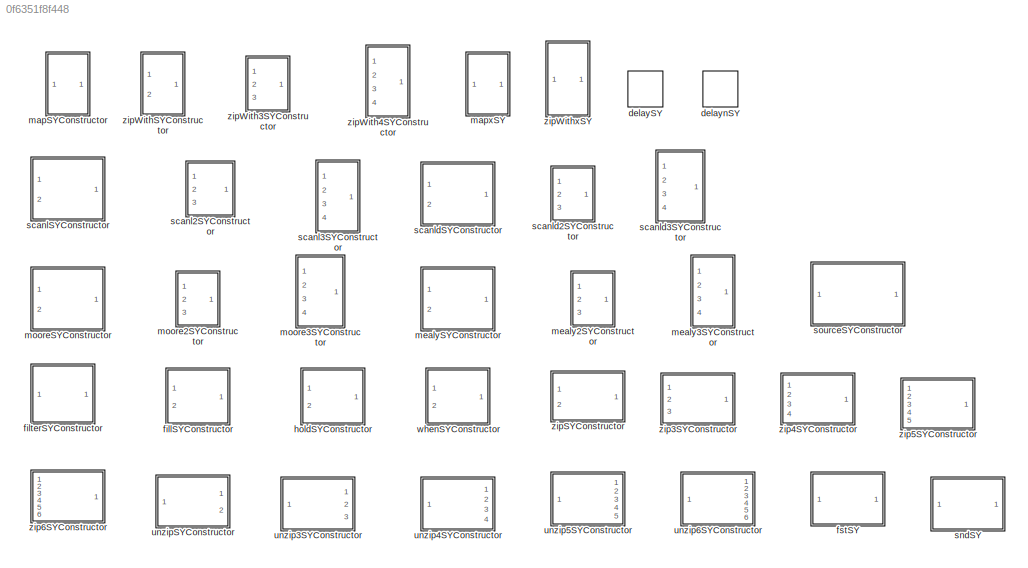
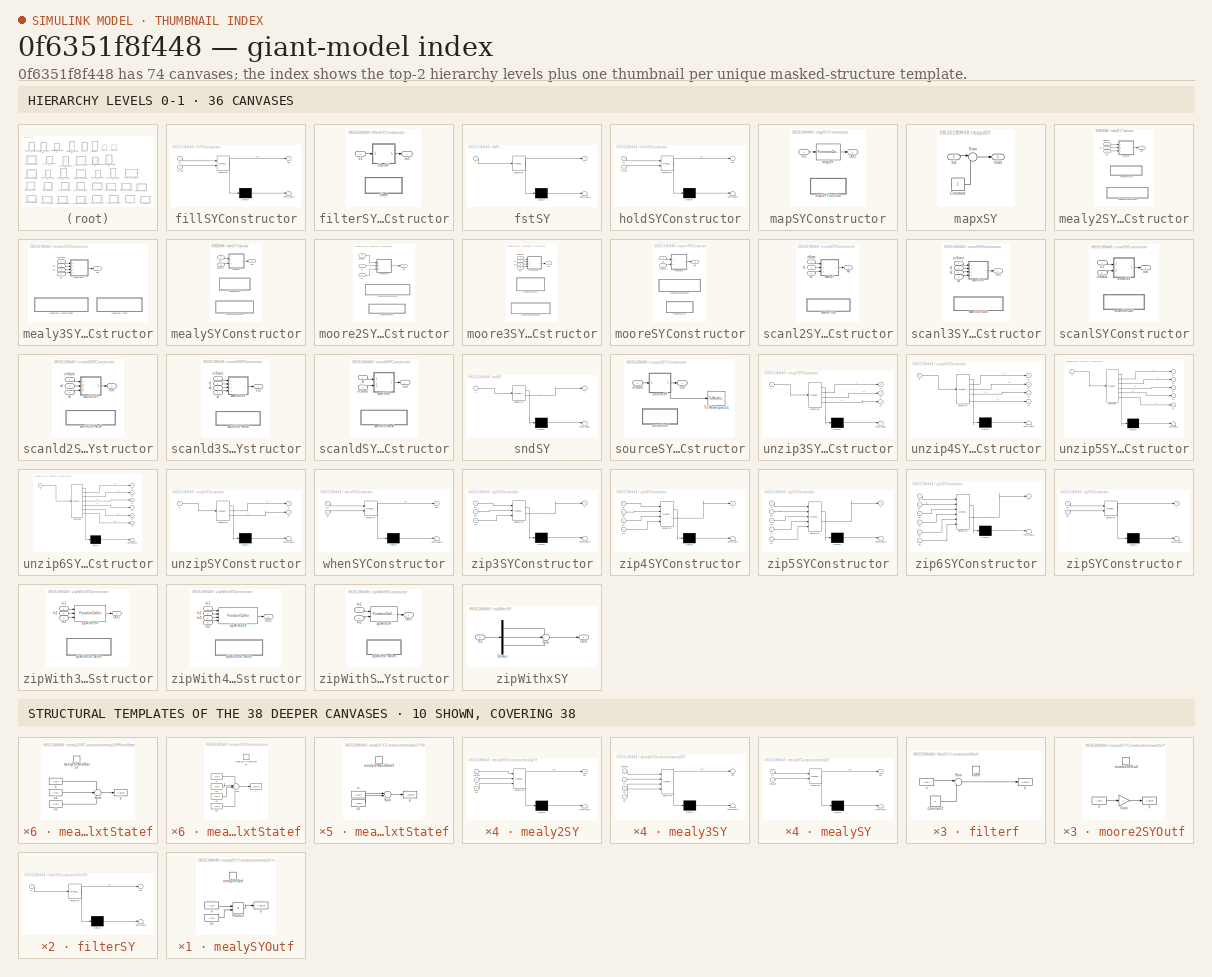
[diagram: thumbnail index - top-2 hierarchy levels (36 canvases) + 10 structural-template representatives of the remaining 38 canvases]
MODEL slx_0f6351f8f448
KIND library
CONFIG AbsTol = auto
CONFIG EnableMultiTasking = off
CONFIG FixedStep = auto
CONFIG MaxStep = auto
CONFIG MinStep = auto
CONFIG RelTol = 1e-3
CONFIG SampleTimeConstraint = Unconstrained
CONFIG SolverName = VariableStepAuto
CONFIG StartTime = 0.0
CONFIG StopTime = 10.0
BLOCK [Delay] delaySY
  BlockKeywords = __PRM__SERIALIZED__DATA__:My Integrator
  DelayLength = 1
  InitialConditionSource = Input port
  InputPortMap = u0,p4
  Ports = [2, 1]
BLOCK [Delay] delaynSY
  BlockKeywords = __PRM__SERIALIZED__DATA__:delaynSY
  DelayLength = 1
  DelayLengthSource = Input port
  InitialConditionSource = Input port
  InputPortMap = u0,p1,p4
  Ports = [3, 1]
BLOCK [SubSystem] fillSYConstructor
  Description = Signals with NaN values cannot be easily imported from Matlab to Simulink and this block need clean signal as input (you  can use cleanNanScript to clean the input signal).
  ErrorFcn = Stateflow.Translate.translate
  PermitHierarchicalResolution = ExplicitOnly
  Ports = [2, 1]
  RequestExecContextInheritance = off
  SFBlockType = Chart
  TreatAsAtomicUnit = on
BLOCK [Demux] fillSYConstructor/ Demux 
  Outputs = 1
  Ports = [1, 1]
BLOCK [S-Function] fillSYConstructor/ SFunction 
  EnableBusSupport = off
  FunctionName = sf_sfun
  PortCounts = [2 2]
  Ports = [2, 2]
  SFcnIsStateOwnerBlock = off
  SFunctionDeploymentMode = off
  Tag = Stateflow S-Function 15
BLOCK [Terminator] fillSYConstructor/ Terminator 
BLOCK [Inport] fillSYConstructor/fillVal
  Port = 2
BLOCK [Outport] fillSYConstructor/out
BLOCK [Inport] fillSYConstructor/s1
BLOCK [SubSystem] filterSYConstructor
  Description = The limit must be decided inside the Simulink's function block. The template is equivalent to: filterSY (<=3) s1
  Ports = [1, 1]
  RequestExecContextInheritance = off
BLOCK [SubSystem] filterSYConstructor/filterSY
  ErrorFcn = Stateflow.Translate.translate
  PermitHierarchicalResolution = ExplicitOnly
  Ports = [1, 1]
  RequestExecContextInheritance = off
  SFBlockType = Chart
  TreatAsAtomicUnit = on
BLOCK [Demux] filterSYConstructor/filterSY/ Demux 
  Outputs = 1
  Ports = [1, 1]
BLOCK [S-Function] filterSYConstructor/filterSY/ SFunction 
  EnableBusSupport = off
  FunctionName = sf_sfun
  PortCounts = [1 2]
  Ports = [1, 2]
  SFcnIsStateOwnerBlock = off
  SFunctionDeploymentMode = off
  Tag = Stateflow S-Function 14
BLOCK [Terminator] filterSYConstructor/filterSY/ Terminator 
BLOCK [Outport] filterSYConstructor/filterSY/out
BLOCK [Inport] filterSYConstructor/filterSY/s1
BLOCK [SubSystem] filterSYConstructor/filterf
  Ports = [0, 0, 0, 1]
  RequestExecContextInheritance = off
  TreatAsAtomicUnit = on
BLOCK [Constant] filterSYConstructor/filterf/Constant1
  Value = 3
BLOCK [Sum] filterSYConstructor/filterf/Sum
  Inputs = |+-
  Ports = [2, 1]
BLOCK [TriggerPort] filterSYConstructor/filterf/filterf
  FunctionName = filterf
  FunctionVisibility = scoped
  IsSimulinkFunction = on
  Ports = []
  StatesWhenEnabling = held
  TriggerType = function-call
  VariantControl = (inherit)
BLOCK [ArgIn] filterSYConstructor/filterf/u
  ArgumentName = u
  DisableCoverage = on
BLOCK [ArgOut] filterSYConstructor/filterf/y
  ArgumentName = y
  DisableCoverage = on
BLOCK [Outport] filterSYConstructor/out
BLOCK [Inport] filterSYConstructor/s1
BLOCK [SubSystem] fstSY
  ErrorFcn = Stateflow.Translate.translate
  PermitHierarchicalResolution = ExplicitOnly
  Ports = [1, 1]
  RequestExecContextInheritance = off
  SFBlockType = MATLAB Function
  TreatAsAtomicUnit = on
BLOCK [Demux] fstSY/ Demux 
  Outputs = 1
  Ports = [1, 1]
BLOCK [S-Function] fstSY/ SFunction 
  EnableBusSupport = off
  FunctionName = sf_sfun
  PortCounts = [1 2]
  Ports = [1, 2]
  SFcnIsStateOwnerBlock = off
  SFunctionDeploymentMode = off
  Tag = Stateflow S-Function 28
BLOCK [Terminator] fstSY/ Terminator 
BLOCK [Inport] fstSY/s
BLOCK [Outport] fstSY/y
BLOCK [SubSystem] holdSYConstructor
  ErrorFcn = Stateflow.Translate.translate
  PermitHierarchicalResolution = ExplicitOnly
  Ports = [2, 1]
  RequestExecContextInheritance = off
  SFBlockType = Chart
  TreatAsAtomicUnit = on
BLOCK [Demux] holdSYConstructor/ Demux 
  Outputs = 1
  Ports = [1, 1]
BLOCK [S-Function] holdSYConstructor/ SFunction 
  EnableBusSupport = off
  FunctionName = sf_sfun
  PortCounts = [2 2]
  Ports = [2, 2]
  SFcnIsStateOwnerBlock = off
  SFunctionDeploymentMode = off
  Tag = Stateflow S-Function 16
BLOCK [Terminator] holdSYConstructor/ Terminator 
BLOCK [Inport] holdSYConstructor/fillVal
  Port = 2
BLOCK [Outport] holdSYConstructor/out
BLOCK [Inport] holdSYConstructor/s1
BLOCK [SubSystem] mapSYConstructor
  Ports = [1, 1]
  RequestExecContextInheritance = off
BLOCK [Inport] mapSYConstructor/In1
BLOCK [Outport] mapSYConstructor/Out1
BLOCK [FunctionCaller] mapSYConstructor/mapSY
  FunctionPrototype = y = mapSYf(u)
  InputArgumentSpecifications = <Enter example>
  OutputArgumentSpecifications = <Enter example>
  Ports = [1, 1]
BLOCK [SubSystem] mapSYConstructor/mapSY Function
  Ports = [0, 0, 0, 1]
  RequestExecContextInheritance = off
  TreatAsAtomicUnit = on
BLOCK [Constant] mapSYConstructor/mapSY Function/Constant
BLOCK [Sum] mapSYConstructor/mapSY Function/Sum
  Inputs = |++
  Ports = [2, 1]
BLOCK [TriggerPort] mapSYConstructor/mapSY Function/mapSYf
  FunctionName = mapSYf
  FunctionVisibility = scoped
  IsSimulinkFunction = on
  Ports = []
  StatesWhenEnabling = held
  TriggerType = function-call
  VariantControl = (inherit)
BLOCK [ArgIn] mapSYConstructor/mapSY Function/u
  ArgumentName = u
  DisableCoverage = on
BLOCK [ArgOut] mapSYConstructor/mapSY Function/y
  ArgumentName = y
  DisableCoverage = on
BLOCK [SubSystem] mapxSY
  Description = the input must be a mux of signals and the sum is the function used as example
  Ports = [1, 1]
  RequestExecContextInheritance = off
BLOCK [Constant] mapxSY/Constant
BLOCK [Inport] mapxSY/In1
BLOCK [Outport] mapxSY/Out1
BLOCK [Sum] mapxSY/Sum
  Inputs = |++
  Ports = [2, 1]
BLOCK [SubSystem] mealy2SYConstructor
  Ports = [3, 1]
  RequestExecContextInheritance = off
BLOCK [Inport] mealy2SYConstructor/inState
BLOCK [SubSystem] mealy2SYConstructor/mealy2SY
  ErrorFcn = Stateflow.Translate.translate
  PermitHierarchicalResolution = ExplicitOnly
  Ports = [3, 1]
  RequestExecContextInheritance = off
  SFBlockType = Chart
  TreatAsAtomicUnit = on
BLOCK [Demux] mealy2SYConstructor/mealy2SY/ Demux 
  Outputs = 1
  Ports = [1, 1]
BLOCK [S-Function] mealy2SYConstructor/mealy2SY/ SFunction 
  EnableBusSupport = off
  FunctionName = sf_sfun
  PortCounts = [3 2]
  Ports = [3, 2]
  SFcnIsStateOwnerBlock = off
  SFunctionDeploymentMode = off
  Tag = Stateflow S-Function 10
BLOCK [Terminator] mealy2SYConstructor/mealy2SY/ Terminator 
BLOCK [Inport] mealy2SYConstructor/mealy2SY/inState
BLOCK [Outport] mealy2SYConstructor/mealy2SY/out
BLOCK [Inport] mealy2SYConstructor/mealy2SY/s1
  Port = 2
BLOCK [Inport] mealy2SYConstructor/mealy2SY/s2
  Port = 3
BLOCK [SubSystem] mealy2SYConstructor/mealy2SYNextStatef
  Ports = [0, 0, 0, 1]
  RequestExecContextInheritance = off
  TreatAsAtomicUnit = on
BLOCK [Sum] mealy2SYConstructor/mealy2SYNextStatef/Sum
  Inputs = +++
  Ports = [3, 1]
BLOCK [TriggerPort] mealy2SYConstructor/mealy2SYNextStatef/mealy2SYNextStatef
  FunctionName = mealy2SYNextStatef
  FunctionVisibility = scoped
  IsSimulinkFunction = on
  Ports = []
  StatesWhenEnabling = held
  TriggerType = function-call
  VariantControl = (inherit)
BLOCK [ArgIn] mealy2SYConstructor/mealy2SYNextStatef/u
  ArgumentName = u
  DisableCoverage = on
BLOCK [ArgIn] mealy2SYConstructor/mealy2SYNextStatef/u1
  ArgumentName = u1
  DisableCoverage = on
  Port = 2
BLOCK [ArgIn] mealy2SYConstructor/mealy2SYNextStatef/u2
  ArgumentName = u2
  DisableCoverage = on
  Port = 3
BLOCK [ArgOut] mealy2SYConstructor/mealy2SYNextStatef/y
  ArgumentName = y
  DisableCoverage = on
BLOCK [SubSystem] mealy2SYConstructor/mealy2SYOutf
  Ports = [0, 0, 0, 1]
  RequestExecContextInheritance = off
  TreatAsAtomicUnit = on
BLOCK [Sum] mealy2SYConstructor/mealy2SYOutf/Sum
  Inputs = +++
  Ports = [3, 1]
BLOCK [TriggerPort] mealy2SYConstructor/mealy2SYOutf/mealy2SYOutf
  FunctionName = mealy2SYOutf
  FunctionVisibility = scoped
  IsSimulinkFunction = on
  Ports = []
  StatesWhenEnabling = held
  TriggerType = function-call
  VariantControl = (inherit)
BLOCK [ArgIn] mealy2SYConstructor/mealy2SYOutf/u
  ArgumentName = u
  DisableCoverage = on
BLOCK [ArgIn] mealy2SYConstructor/mealy2SYOutf/u1
  ArgumentName = u1
  DisableCoverage = on
  Port = 2
BLOCK [ArgIn] mealy2SYConstructor/mealy2SYOutf/u2
  ArgumentName = u2
  DisableCoverage = on
  Port = 3
BLOCK [ArgOut] mealy2SYConstructor/mealy2SYOutf/y
  ArgumentName = y
  DisableCoverage = on
BLOCK [Outport] mealy2SYConstructor/out
BLOCK [Inport] mealy2SYConstructor/s1
  Port = 2
BLOCK [Inport] mealy2SYConstructor/s2
  Port = 3
BLOCK [SubSystem] mealy3SYConstructor
  Ports = [4, 1]
  RequestExecContextInheritance = off
BLOCK [Inport] mealy3SYConstructor/inState
BLOCK [SubSystem] mealy3SYConstructor/mealy3SY
  ErrorFcn = Stateflow.Translate.translate
  PermitHierarchicalResolution = ExplicitOnly
  Ports = [4, 1]
  RequestExecContextInheritance = off
  SFBlockType = Chart
  TreatAsAtomicUnit = on
BLOCK [Demux] mealy3SYConstructor/mealy3SY/ Demux 
  Outputs = 1
  Ports = [1, 1]
BLOCK [S-Function] mealy3SYConstructor/mealy3SY/ SFunction 
  EnableBusSupport = off
  FunctionName = sf_sfun
  PortCounts = [4 2]
  Ports = [4, 2]
  SFcnIsStateOwnerBlock = off
  SFunctionDeploymentMode = off
  Tag = Stateflow S-Function 12
BLOCK [Terminator] mealy3SYConstructor/mealy3SY/ Terminator 
BLOCK [Inport] mealy3SYConstructor/mealy3SY/inState
BLOCK [Outport] mealy3SYConstructor/mealy3SY/out
BLOCK [Inport] mealy3SYConstructor/mealy3SY/s1
  Port = 2
BLOCK [Inport] mealy3SYConstructor/mealy3SY/s2
  Port = 3
BLOCK [Inport] mealy3SYConstructor/mealy3SY/s3
  Port = 4
BLOCK [SubSystem] mealy3SYConstructor/mealy3SYNextStatef
  Ports = [0, 0, 0, 1]
  RequestExecContextInheritance = off
  TreatAsAtomicUnit = on
BLOCK [Sum] mealy3SYConstructor/mealy3SYNextStatef/Sum
  Inputs = ++++
  Ports = [4, 1]
BLOCK [TriggerPort] mealy3SYConstructor/mealy3SYNextStatef/mealy3SYNextStatef
  FunctionName = mealy3SYNextStatef
  FunctionVisibility = scoped
  IsSimulinkFunction = on
  Ports = []
  StatesWhenEnabling = held
  TriggerType = function-call
  VariantControl = (inherit)
BLOCK [ArgIn] mealy3SYConstructor/mealy3SYNextStatef/u
  ArgumentName = u
  DisableCoverage = on
BLOCK [ArgIn] mealy3SYConstructor/mealy3SYNextStatef/u1
  ArgumentName = u1
  DisableCoverage = on
  Port = 2
BLOCK [ArgIn] mealy3SYConstructor/mealy3SYNextStatef/u2
  ArgumentName = u2
  DisableCoverage = on
  Port = 3
BLOCK [ArgIn] mealy3SYConstructor/mealy3SYNextStatef/u3
  ArgumentName = u3
  DisableCoverage = on
  Port = 4
BLOCK [ArgOut] mealy3SYConstructor/mealy3SYNextStatef/y
  ArgumentName = y
  DisableCoverage = on
BLOCK [SubSystem] mealy3SYConstructor/mealy3SYOutf
  Ports = [0, 0, 0, 1]
  RequestExecContextInheritance = off
  TreatAsAtomicUnit = on
BLOCK [Sum] mealy3SYConstructor/mealy3SYOutf/Sum
  Inputs = ++++
  Ports = [4, 1]
BLOCK [TriggerPort] mealy3SYConstructor/mealy3SYOutf/mealy3SYOutf
  FunctionName = mealy3SYOutf
  FunctionVisibility = scoped
  IsSimulinkFunction = on
  Ports = []
  StatesWhenEnabling = held
  TriggerType = function-call
  VariantControl = (inherit)
BLOCK [ArgIn] mealy3SYConstructor/mealy3SYOutf/u
  ArgumentName = u
  DisableCoverage = on
BLOCK [ArgIn] mealy3SYConstructor/mealy3SYOutf/u1
  ArgumentName = u1
  DisableCoverage = on
  Port = 2
BLOCK [ArgIn] mealy3SYConstructor/mealy3SYOutf/u2
  ArgumentName = u2
  DisableCoverage = on
  Port = 3
BLOCK [ArgIn] mealy3SYConstructor/mealy3SYOutf/u3
  ArgumentName = u3
  DisableCoverage = on
  Port = 4
BLOCK [ArgOut] mealy3SYConstructor/mealy3SYOutf/y
  ArgumentName = y
  DisableCoverage = on
BLOCK [Outport] mealy3SYConstructor/out
BLOCK [Inport] mealy3SYConstructor/s1
  Port = 2
BLOCK [Inport] mealy3SYConstructor/s2
  Port = 3
BLOCK [Inport] mealy3SYConstructor/s3
  Port = 4
BLOCK [SubSystem] mealySYConstructor
  Description = The combinational function for next state decoder and for the output have to be set inside this subsystem (disabing the links).\nThis block is a template corresponding to the ForSyDe line of code: mealySY (+) (*) inState $ s1
  Ports = [2, 1]
  RequestExecContextInheritance = off
BLOCK [Inport] mealySYConstructor/inState
  Port = 2
BLOCK [SubSystem] mealySYConstructor/mealySY
  ErrorFcn = Stateflow.Translate.translate
  PermitHierarchicalResolution = ExplicitOnly
  Ports = [2, 1]
  RequestExecContextInheritance = off
  SFBlockType = Chart
  TreatAsAtomicUnit = on
BLOCK [Demux] mealySYConstructor/mealySY/ Demux 
  Outputs = 1
  Ports = [1, 1]
BLOCK [S-Function] mealySYConstructor/mealySY/ SFunction 
  EnableBusSupport = off
  FunctionName = sf_sfun
  PortCounts = [2 2]
  Ports = [2, 2]
  SFcnIsStateOwnerBlock = off
  SFunctionDeploymentMode = off
  Tag = Stateflow S-Function 4
BLOCK [Terminator] mealySYConstructor/mealySY/ Terminator 
BLOCK [Inport] mealySYConstructor/mealySY/inState
  Port = 2
BLOCK [Outport] mealySYConstructor/mealySY/out
BLOCK [Inport] mealySYConstructor/mealySY/s1
BLOCK [SubSystem] mealySYConstructor/mealySYNextStatef
  Ports = [0, 0, 0, 1]
  RequestExecContextInheritance = off
  TreatAsAtomicUnit = on
BLOCK [Sum] mealySYConstructor/mealySYNextStatef/Sum
  Inputs = |++
  Ports = [2, 1]
BLOCK [TriggerPort] mealySYConstructor/mealySYNextStatef/mealySYNextStatef
  FunctionName = mealySYNextStatef
  FunctionVisibility = scoped
  IsSimulinkFunction = on
  Ports = []
  StatesWhenEnabling = held
  TriggerType = function-call
  VariantControl = (inherit)
BLOCK [ArgIn] mealySYConstructor/mealySYNextStatef/u
  ArgumentName = u
  DisableCoverage = on
BLOCK [ArgIn] mealySYConstructor/mealySYNextStatef/u1
  ArgumentName = u1
  DisableCoverage = on
  Port = 2
BLOCK [ArgOut] mealySYConstructor/mealySYNextStatef/y
  ArgumentName = y
  DisableCoverage = on
BLOCK [SubSystem] mealySYConstructor/mealySYOutf
  Ports = [0, 0, 0, 1]
  RequestExecContextInheritance = off
  TreatAsAtomicUnit = on
BLOCK [Product] mealySYConstructor/mealySYOutf/Product
  Ports = [2, 1]
BLOCK [TriggerPort] mealySYConstructor/mealySYOutf/mealySYOutf
  FunctionName = mealySYOutf
  FunctionVisibility = scoped
  IsSimulinkFunction = on
  Ports = []
  StatesWhenEnabling = held
  TriggerType = function-call
  VariantControl = (inherit)
BLOCK [ArgIn] mealySYConstructor/mealySYOutf/u
  ArgumentName = u
  DisableCoverage = on
BLOCK [ArgIn] mealySYConstructor/mealySYOutf/u1
  ArgumentName = u1
  DisableCoverage = on
  Port = 2
BLOCK [ArgOut] mealySYConstructor/mealySYOutf/y
  ArgumentName = y
  DisableCoverage = on
BLOCK [Outport] mealySYConstructor/out
BLOCK [Inport] mealySYConstructor/s1
BLOCK [SubSystem] moore2SYConstructor
  Ports = [3, 1]
  RequestExecContextInheritance = off
BLOCK [Inport] moore2SYConstructor/inState
BLOCK [SubSystem] moore2SYConstructor/moore2SY
  ErrorFcn = Stateflow.Translate.translate
  PermitHierarchicalResolution = ExplicitOnly
  Ports = [3, 1]
  RequestExecContextInheritance = off
  SFBlockType = Chart
  TreatAsAtomicUnit = on
BLOCK [Demux] moore2SYConstructor/moore2SY/ Demux 
  Outputs = 1
  Ports = [1, 1]
BLOCK [S-Function] moore2SYConstructor/moore2SY/ SFunction 
  EnableBusSupport = off
  FunctionName = sf_sfun
  PortCounts = [3 2]
  Ports = [3, 2]
  SFcnIsStateOwnerBlock = off
  SFunctionDeploymentMode = off
  Tag = Stateflow S-Function 9
BLOCK [Terminator] moore2SYConstructor/moore2SY/ Terminator 
BLOCK [Inport] moore2SYConstructor/moore2SY/inState
BLOCK [Outport] moore2SYConstructor/moore2SY/out
BLOCK [Inport] moore2SYConstructor/moore2SY/s1
  Port = 2
BLOCK [Inport] moore2SYConstructor/moore2SY/s2
  Port = 3
BLOCK [SubSystem] moore2SYConstructor/moore2SYNextStatef
  Ports = [0, 0, 0, 1]
  RequestExecContextInheritance = off
  TreatAsAtomicUnit = on
BLOCK [Sum] moore2SYConstructor/moore2SYNextStatef/Sum
  Inputs = +++
  Ports = [3, 1]
BLOCK [TriggerPort] moore2SYConstructor/moore2SYNextStatef/moore2SYNextStatef
  FunctionName = moore2SYNextStatef
  FunctionVisibility = scoped
  IsSimulinkFunction = on
  Ports = []
  StatesWhenEnabling = held
  TriggerType = function-call
  VariantControl = (inherit)
BLOCK [ArgIn] moore2SYConstructor/moore2SYNextStatef/u
  ArgumentName = u
  DisableCoverage = on
BLOCK [ArgIn] moore2SYConstructor/moore2SYNextStatef/u1
  ArgumentName = u1
  DisableCoverage = on
  Port = 2
BLOCK [ArgIn] moore2SYConstructor/moore2SYNextStatef/u2
  ArgumentName = u2
  DisableCoverage = on
  Port = 3
BLOCK [ArgOut] moore2SYConstructor/moore2SYNextStatef/y
  ArgumentName = y
  DisableCoverage = on
BLOCK [SubSystem] moore2SYConstructor/moore2SYOutf
  Ports = [0, 0, 0, 1]
  RequestExecContextInheritance = off
  TreatAsAtomicUnit = on
BLOCK [Gain] moore2SYConstructor/moore2SYOutf/Gain
  Gain = 2
BLOCK [TriggerPort] moore2SYConstructor/moore2SYOutf/moore2SYOutf
  FunctionName = moore2SYOutf
  FunctionVisibility = scoped
  IsSimulinkFunction = on
  Ports = []
  StatesWhenEnabling = held
  TriggerType = function-call
  VariantControl = (inherit)
BLOCK [ArgIn] moore2SYConstructor/moore2SYOutf/u
  ArgumentName = u
  DisableCoverage = on
BLOCK [ArgOut] moore2SYConstructor/moore2SYOutf/y
  ArgumentName = y
  DisableCoverage = on
BLOCK [Outport] moore2SYConstructor/out
BLOCK [Inport] moore2SYConstructor/s1
  Port = 2
BLOCK [Inport] moore2SYConstructor/s2
  Port = 3
BLOCK [SubSystem] moore3SYConstructor
  Ports = [4, 1]
  RequestExecContextInheritance = off
BLOCK [Inport] moore3SYConstructor/inState
BLOCK [SubSystem] moore3SYConstructor/moore3SY
  ErrorFcn = Stateflow.Translate.translate
  PermitHierarchicalResolution = ExplicitOnly
  Ports = [4, 1]
  RequestExecContextInheritance = off
  SFBlockType = Chart
  TreatAsAtomicUnit = on
BLOCK [Demux] moore3SYConstructor/moore3SY/ Demux 
  Outputs = 1
  Ports = [1, 1]
BLOCK [S-Function] moore3SYConstructor/moore3SY/ SFunction 
  EnableBusSupport = off
  FunctionName = sf_sfun
  PortCounts = [4 2]
  Ports = [4, 2]
  SFcnIsStateOwnerBlock = off
  SFunctionDeploymentMode = off
  Tag = Stateflow S-Function 11
BLOCK [Terminator] moore3SYConstructor/moore3SY/ Terminator 
BLOCK [Inport] moore3SYConstructor/moore3SY/inState
BLOCK [Outport] moore3SYConstructor/moore3SY/out
BLOCK [Inport] moore3SYConstructor/moore3SY/s1
  Port = 2
BLOCK [Inport] moore3SYConstructor/moore3SY/s2
  Port = 3
BLOCK [Inport] moore3SYConstructor/moore3SY/s3
  Port = 4
BLOCK [SubSystem] moore3SYConstructor/moore3SYNextStatef
  Ports = [0, 0, 0, 1]
  RequestExecContextInheritance = off
  TreatAsAtomicUnit = on
BLOCK [Sum] moore3SYConstructor/moore3SYNextStatef/Sum
  Inputs = ++++
  Ports = [4, 1]
BLOCK [TriggerPort] moore3SYConstructor/moore3SYNextStatef/moore3SYNextStatef
  FunctionName = moore3SYNextStatef
  FunctionVisibility = scoped
  IsSimulinkFunction = on
  Ports = []
  StatesWhenEnabling = held
  TriggerType = function-call
  VariantControl = (inherit)
BLOCK [ArgIn] moore3SYConstructor/moore3SYNextStatef/u
  ArgumentName = u
  DisableCoverage = on
BLOCK [ArgIn] moore3SYConstructor/moore3SYNextStatef/u1
  ArgumentName = u1
  DisableCoverage = on
  Port = 2
BLOCK [ArgIn] moore3SYConstructor/moore3SYNextStatef/u2
  ArgumentName = u2
  DisableCoverage = on
  Port = 3
BLOCK [ArgIn] moore3SYConstructor/moore3SYNextStatef/u3
  ArgumentName = u3
  DisableCoverage = on
  Port = 4
BLOCK [ArgOut] moore3SYConstructor/moore3SYNextStatef/y
  ArgumentName = y
  DisableCoverage = on
BLOCK [SubSystem] moore3SYConstructor/moore3SYOutf
  Ports = [0, 0, 0, 1]
  RequestExecContextInheritance = off
  TreatAsAtomicUnit = on
BLOCK [Gain] moore3SYConstructor/moore3SYOutf/Gain
  Gain = 2
BLOCK [TriggerPort] moore3SYConstructor/moore3SYOutf/moore3SYOutf
  FunctionName = moore3SYOutf
  FunctionVisibility = scoped
  IsSimulinkFunction = on
  Ports = []
  StatesWhenEnabling = held
  TriggerType = function-call
  VariantControl = (inherit)
BLOCK [ArgIn] moore3SYConstructor/moore3SYOutf/u
  ArgumentName = u
  DisableCoverage = on
BLOCK [ArgOut] moore3SYConstructor/moore3SYOutf/y
  ArgumentName = y
  DisableCoverage = on
BLOCK [Outport] moore3SYConstructor/out
BLOCK [Inport] moore3SYConstructor/s1
  Port = 2
BLOCK [Inport] moore3SYConstructor/s2
  Port = 3
BLOCK [Inport] moore3SYConstructor/s3
  Port = 4
BLOCK [SubSystem] mooreSYConstructor
  Description = The combinational function for next state decoder and for the output have to be set inside this subsystem (disabing the links).\nThis block is a template corresponding to the ForSyDe line of code: mooreSY (+) (*2) inState $ s1.
  Ports = [2, 1]
  RequestExecContextInheritance = off
BLOCK [Inport] mooreSYConstructor/inState
  IconDisplay = Signal name
  Port = 2
BLOCK [SubSystem] mooreSYConstructor/mooreSY
  ErrorFcn = Stateflow.Translate.translate
  PermitHierarchicalResolution = ExplicitOnly
  Ports = [2, 1]
  RequestExecContextInheritance = off
  SFBlockType = Chart
  TreatAsAtomicUnit = on
BLOCK [Demux] mooreSYConstructor/mooreSY/ Demux 
  Outputs = 1
  Ports = [1, 1]
BLOCK [S-Function] mooreSYConstructor/mooreSY/ SFunction 
  EnableBusSupport = off
  FunctionName = sf_sfun
  PortCounts = [2 2]
  Ports = [2, 2]
  SFcnIsStateOwnerBlock = off
  SFunctionDeploymentMode = off
  Tag = Stateflow S-Function 2
BLOCK [Terminator] mooreSYConstructor/mooreSY/ Terminator 
BLOCK [Inport] mooreSYConstructor/mooreSY/inState
  Port = 2
BLOCK [Outport] mooreSYConstructor/mooreSY/out
BLOCK [Inport] mooreSYConstructor/mooreSY/s1
BLOCK [SubSystem] mooreSYConstructor/mooreSYNextStatef
  Ports = [0, 0, 0, 1]
  RequestExecContextInheritance = off
  TreatAsAtomicUnit = on
BLOCK [Sum] mooreSYConstructor/mooreSYNextStatef/Sum
  Inputs = |++
  Ports = [2, 1]
BLOCK [TriggerPort] mooreSYConstructor/mooreSYNextStatef/mooreSYNextStatef
  FunctionName = mooreSYNextStatef
  FunctionVisibility = scoped
  IsSimulinkFunction = on
  Ports = []
  StatesWhenEnabling = held
  TriggerType = function-call
  VariantControl = (inherit)
BLOCK [ArgIn] mooreSYConstructor/mooreSYNextStatef/u
  ArgumentName = u
  DisableCoverage = on
BLOCK [ArgIn] mooreSYConstructor/mooreSYNextStatef/u1
  ArgumentName = u1
  DisableCoverage = on
  Port = 2
BLOCK [ArgOut] mooreSYConstructor/mooreSYNextStatef/y
  ArgumentName = y
  DisableCoverage = on
BLOCK [SubSystem] mooreSYConstructor/mooreSYOutf
  Ports = [0, 0, 0, 1]
  RequestExecContextInheritance = off
  TreatAsAtomicUnit = on
BLOCK [Gain] mooreSYConstructor/mooreSYOutf/Gain
  Gain = 2
BLOCK [TriggerPort] mooreSYConstructor/mooreSYOutf/mooreSYOutf
  FunctionName = mooreSYOutf
  FunctionVisibility = scoped
  IsSimulinkFunction = on
  Ports = []
  StatesWhenEnabling = held
  TriggerType = function-call
  VariantControl = (inherit)
BLOCK [ArgIn] mooreSYConstructor/mooreSYOutf/u
  ArgumentName = u
  DisableCoverage = on
BLOCK [ArgOut] mooreSYConstructor/mooreSYOutf/y
  ArgumentName = y
  DisableCoverage = on
BLOCK [Outport] mooreSYConstructor/out
BLOCK [Inport] mooreSYConstructor/s1
  IconDisplay = Signal name
BLOCK [SubSystem] scanl2SYConstructor
  Ports = [3, 1]
  RequestExecContextInheritance = off
BLOCK [Inport] scanl2SYConstructor/inState
BLOCK [Outport] scanl2SYConstructor/out
BLOCK [Inport] scanl2SYConstructor/s1
  Port = 2
BLOCK [Inport] scanl2SYConstructor/s2
  Port = 3
BLOCK [SubSystem] scanl2SYConstructor/scanl2SY
  ErrorFcn = Stateflow.Translate.translate
  PermitHierarchicalResolution = ExplicitOnly
  Ports = [3, 1]
  RequestExecContextInheritance = off
  SFBlockType = Chart
  TreatAsAtomicUnit = on
BLOCK [Demux] scanl2SYConstructor/scanl2SY/ Demux 
  Outputs = 1
  Ports = [1, 1]
BLOCK [S-Function] scanl2SYConstructor/scanl2SY/ SFunction 
  EnableBusSupport = off
  FunctionName = sf_sfun
  PortCounts = [3 2]
  Ports = [3, 2]
  SFcnIsStateOwnerBlock = off
  SFunctionDeploymentMode = off
  Tag = Stateflow S-Function 6
BLOCK [Terminator] scanl2SYConstructor/scanl2SY/ Terminator 
BLOCK [Inport] scanl2SYConstructor/scanl2SY/inState
BLOCK [Outport] scanl2SYConstructor/scanl2SY/out
BLOCK [Inport] scanl2SYConstructor/scanl2SY/s1
  Port = 2
BLOCK [Inport] scanl2SYConstructor/scanl2SY/s2
  Port = 3
BLOCK [SubSystem] scanl2SYConstructor/scanl2SYOutf
  Ports = [0, 0, 0, 1]
  RequestExecContextInheritance = off
  TreatAsAtomicUnit = on
BLOCK [Sum] scanl2SYConstructor/scanl2SYOutf/Sum
  Inputs = |+++
  Ports = [3, 1]
BLOCK [TriggerPort] scanl2SYConstructor/scanl2SYOutf/scanl2SYOutf
  FunctionName = scanl2SYOutf
  FunctionVisibility = scoped
  IsSimulinkFunction = on
  Ports = []
  StatesWhenEnabling = held
  TriggerType = function-call
  VariantControl = (inherit)
BLOCK [ArgIn] scanl2SYConstructor/scanl2SYOutf/u
  ArgumentName = u
  DisableCoverage = on
BLOCK [ArgIn] scanl2SYConstructor/scanl2SYOutf/u1
  ArgumentName = u1
  DisableCoverage = on
  Port = 2
BLOCK [ArgIn] scanl2SYConstructor/scanl2SYOutf/u2
  ArgumentName = u2
  DisableCoverage = on
  Port = 3
BLOCK [ArgOut] scanl2SYConstructor/scanl2SYOutf/y
  ArgumentName = y
  DisableCoverage = on
BLOCK [SubSystem] scanl3SYConstructor
  Ports = [4, 1]
  RequestExecContextInheritance = off
BLOCK [Inport] scanl3SYConstructor/inState
BLOCK [Outport] scanl3SYConstructor/out
BLOCK [Inport] scanl3SYConstructor/s1
  Port = 2
BLOCK [Inport] scanl3SYConstructor/s2
  Port = 3
BLOCK [Inport] scanl3SYConstructor/s3
  Port = 4
BLOCK [SubSystem] scanl3SYConstructor/scanl3SY
  ErrorFcn = Stateflow.Translate.translate
  PermitHierarchicalResolution = ExplicitOnly
  Ports = [4, 1]
  RequestExecContextInheritance = off
  SFBlockType = Chart
  TreatAsAtomicUnit = on
BLOCK [Demux] scanl3SYConstructor/scanl3SY/ Demux 
  Outputs = 1
  Ports = [1, 1]
BLOCK [S-Function] scanl3SYConstructor/scanl3SY/ SFunction 
  EnableBusSupport = off
  FunctionName = sf_sfun
  PortCounts = [4 2]
  Ports = [4, 2]
  SFcnIsStateOwnerBlock = off
  SFunctionDeploymentMode = off
  Tag = Stateflow S-Function 5
BLOCK [Terminator] scanl3SYConstructor/scanl3SY/ Terminator 
BLOCK [Inport] scanl3SYConstructor/scanl3SY/inState
BLOCK [Outport] scanl3SYConstructor/scanl3SY/out
BLOCK [Inport] scanl3SYConstructor/scanl3SY/s1
  Port = 2
BLOCK [Inport] scanl3SYConstructor/scanl3SY/s2
  Port = 3
BLOCK [Inport] scanl3SYConstructor/scanl3SY/s3
  Port = 4
BLOCK [SubSystem] scanl3SYConstructor/scanl3SYOutf
  Ports = [0, 0, 0, 1]
  RequestExecContextInheritance = off
  TreatAsAtomicUnit = on
BLOCK [Sum] scanl3SYConstructor/scanl3SYOutf/Sum
  Inputs = ++++
  Ports = [4, 1]
BLOCK [TriggerPort] scanl3SYConstructor/scanl3SYOutf/scanl3SYOutf
  FunctionName = scanl3SYOutf
  FunctionVisibility = scoped
  IsSimulinkFunction = on
  Ports = []
  StatesWhenEnabling = held
  TriggerType = function-call
  VariantControl = (inherit)
BLOCK [ArgIn] scanl3SYConstructor/scanl3SYOutf/u
  ArgumentName = u
  DisableCoverage = on
BLOCK [ArgIn] scanl3SYConstructor/scanl3SYOutf/u1
  ArgumentName = u1
  DisableCoverage = on
  Port = 2
BLOCK [ArgIn] scanl3SYConstructor/scanl3SYOutf/u2
  ArgumentName = u2
  DisableCoverage = on
  Port = 3
BLOCK [ArgIn] scanl3SYConstructor/scanl3SYOutf/u3
  ArgumentName = u3
  DisableCoverage = on
  Port = 4
BLOCK [ArgOut] scanl3SYConstructor/scanl3SYOutf/y
  ArgumentName = y
  DisableCoverage = on
BLOCK [SubSystem] scanlSYConstructor
  Description = The combinational function for the output have to be set inside this subsystem (disabing the links).\nThis block is a template corresponding to the ForSyDe line of code: scanlSY (+) inState s1
  Ports = [2, 1]
  RequestExecContextInheritance = off
BLOCK [Inport] scanlSYConstructor/inState
  Port = 2
BLOCK [Outport] scanlSYConstructor/out
BLOCK [Inport] scanlSYConstructor/s1
BLOCK [SubSystem] scanlSYConstructor/scanlSY
  ErrorFcn = Stateflow.Translate.translate
  PermitHierarchicalResolution = ExplicitOnly
  Ports = [2, 1]
  RequestExecContextInheritance = off
  SFBlockType = Chart
  TreatAsAtomicUnit = on
BLOCK [Demux] scanlSYConstructor/scanlSY/ Demux 
  Outputs = 1
  Ports = [1, 1]
BLOCK [S-Function] scanlSYConstructor/scanlSY/ SFunction 
  EnableBusSupport = on
  FunctionName = sf_sfun
  PortCounts = [2 2]
  Ports = [2, 2]
  SFcnIsStateOwnerBlock = off
  SFunctionDeploymentMode = off
  Tag = Stateflow S-Function 3
BLOCK [Terminator] scanlSYConstructor/scanlSY/ Terminator 
BLOCK [Inport] scanlSYConstructor/scanlSY/inState
  Port = 2
BLOCK [Outport] scanlSYConstructor/scanlSY/out
BLOCK [Inport] scanlSYConstructor/scanlSY/s1
BLOCK [SubSystem] scanlSYConstructor/scanlSYOutf
  Ports = [0, 0, 0, 1]
  RequestExecContextInheritance = off
  TreatAsAtomicUnit = on
BLOCK [Sum] scanlSYConstructor/scanlSYOutf/Sum
  Inputs = |++
  Ports = [2, 1]
BLOCK [TriggerPort] scanlSYConstructor/scanlSYOutf/scanlSYOutf
  FunctionName = scanlSYOutf
  FunctionVisibility = scoped
  IsSimulinkFunction = on
  Ports = []
  StatesWhenEnabling = held
  TriggerType = function-call
  VariantControl = (inherit)
BLOCK [ArgIn] scanlSYConstructor/scanlSYOutf/u
  ArgumentName = u
  DisableCoverage = on
BLOCK [ArgIn] scanlSYConstructor/scanlSYOutf/u1
  ArgumentName = u1
  DisableCoverage = on
  Port = 2
BLOCK [ArgOut] scanlSYConstructor/scanlSYOutf/y
  ArgumentName = y
  DisableCoverage = on
BLOCK [SubSystem] scanld2SYConstructor
  Ports = [3, 1]
  RequestExecContextInheritance = off
BLOCK [Inport] scanld2SYConstructor/inState
BLOCK [Outport] scanld2SYConstructor/out
BLOCK [Inport] scanld2SYConstructor/s1
  Port = 2
BLOCK [Inport] scanld2SYConstructor/s2
  Port = 3
BLOCK [SubSystem] scanld2SYConstructor/scanld2SY
  ErrorFcn = Stateflow.Translate.translate
  PermitHierarchicalResolution = ExplicitOnly
  Ports = [3, 1]
  RequestExecContextInheritance = off
  SFBlockType = Chart
  TreatAsAtomicUnit = on
BLOCK [Demux] scanld2SYConstructor/scanld2SY/ Demux 
  Outputs = 1
  Ports = [1, 1]
BLOCK [S-Function] scanld2SYConstructor/scanld2SY/ SFunction 
  EnableBusSupport = off
  FunctionName = sf_sfun
  PortCounts = [3 2]
  Ports = [3, 2]
  SFcnIsStateOwnerBlock = off
  SFunctionDeploymentMode = off
  Tag = Stateflow S-Function 7
BLOCK [Terminator] scanld2SYConstructor/scanld2SY/ Terminator 
BLOCK [Inport] scanld2SYConstructor/scanld2SY/inState
BLOCK [Outport] scanld2SYConstructor/scanld2SY/out
BLOCK [Inport] scanld2SYConstructor/scanld2SY/s1
  Port = 2
BLOCK [Inport] scanld2SYConstructor/scanld2SY/s2
  Port = 3
BLOCK [SubSystem] scanld2SYConstructor/scanld2SYNextf
  Ports = [0, 0, 0, 1]
  RequestExecContextInheritance = off
  TreatAsAtomicUnit = on
BLOCK [Sum] scanld2SYConstructor/scanld2SYNextf/Sum
  Inputs = |+++
  Ports = [3, 1]
BLOCK [TriggerPort] scanld2SYConstructor/scanld2SYNextf/scanld2SYNextf
  FunctionName = scanld2SYNextf
  FunctionVisibility = scoped
  IsSimulinkFunction = on
  Ports = []
  StatesWhenEnabling = held
  TriggerType = function-call
  VariantControl = (inherit)
BLOCK [ArgIn] scanld2SYConstructor/scanld2SYNextf/u
  ArgumentName = u
  DisableCoverage = on
BLOCK [ArgIn] scanld2SYConstructor/scanld2SYNextf/u1
  ArgumentName = u1
  DisableCoverage = on
  Port = 2
BLOCK [ArgIn] scanld2SYConstructor/scanld2SYNextf/u2
  ArgumentName = u2
  DisableCoverage = on
  Port = 3
BLOCK [ArgOut] scanld2SYConstructor/scanld2SYNextf/y
  ArgumentName = y
  DisableCoverage = on
BLOCK [SubSystem] scanld3SYConstructor
  Ports = [4, 1]
  RequestExecContextInheritance = off
BLOCK [Inport] scanld3SYConstructor/inState
BLOCK [Outport] scanld3SYConstructor/out
BLOCK [Inport] scanld3SYConstructor/s1
  Port = 2
BLOCK [Inport] scanld3SYConstructor/s2
  Port = 3
BLOCK [Inport] scanld3SYConstructor/s3
  Port = 4
BLOCK [SubSystem] scanld3SYConstructor/scanld3SY
  ErrorFcn = Stateflow.Translate.translate
  PermitHierarchicalResolution = ExplicitOnly
  Ports = [4, 1]
  RequestExecContextInheritance = off
  SFBlockType = Chart
  TreatAsAtomicUnit = on
BLOCK [Demux] scanld3SYConstructor/scanld3SY/ Demux 
  Outputs = 1
  Ports = [1, 1]
BLOCK [S-Function] scanld3SYConstructor/scanld3SY/ SFunction 
  EnableBusSupport = off
  FunctionName = sf_sfun
  PortCounts = [4 2]
  Ports = [4, 2]
  SFcnIsStateOwnerBlock = off
  SFunctionDeploymentMode = off
  Tag = Stateflow S-Function 8
BLOCK [Terminator] scanld3SYConstructor/scanld3SY/ Terminator 
BLOCK [Inport] scanld3SYConstructor/scanld3SY/inState
BLOCK [Outport] scanld3SYConstructor/scanld3SY/out
BLOCK [Inport] scanld3SYConstructor/scanld3SY/s1
  Port = 2
BLOCK [Inport] scanld3SYConstructor/scanld3SY/s2
  Port = 3
BLOCK [Inport] scanld3SYConstructor/scanld3SY/s3
  Port = 4
BLOCK [SubSystem] scanld3SYConstructor/scanld3SYNextf
  Ports = [0, 0, 0, 1]
  RequestExecContextInheritance = off
  TreatAsAtomicUnit = on
BLOCK [Sum] scanld3SYConstructor/scanld3SYNextf/Sum
  Inputs = ++++
  Ports = [4, 1]
BLOCK [TriggerPort] scanld3SYConstructor/scanld3SYNextf/scanld3SYNextf
  FunctionName = scanld3SYNextf
  FunctionVisibility = scoped
  IsSimulinkFunction = on
  Ports = []
  StatesWhenEnabling = held
  TriggerType = function-call
  VariantControl = (inherit)
BLOCK [ArgIn] scanld3SYConstructor/scanld3SYNextf/u
  ArgumentName = u
  DisableCoverage = on
BLOCK [ArgIn] scanld3SYConstructor/scanld3SYNextf/u1
  ArgumentName = u1
  DisableCoverage = on
  Port = 2
BLOCK [ArgIn] scanld3SYConstructor/scanld3SYNextf/u2
  ArgumentName = u2
  DisableCoverage = on
  Port = 3
BLOCK [ArgIn] scanld3SYConstructor/scanld3SYNextf/u3
  ArgumentName = u3
  DisableCoverage = on
  Port = 4
BLOCK [ArgOut] scanld3SYConstructor/scanld3SYNextf/y
  ArgumentName = y
  DisableCoverage = on
BLOCK [SubSystem] scanldSYConstructor
  Description = The combinational function for next state decoder has to be set inside this subsystem (disabing the links).\nThis block is a template corresponding to the ForSyDe line of code: scanldSY (+) inState s1
  Ports = [2, 1]
  RequestExecContextInheritance = off
BLOCK [Inport] scanldSYConstructor/inState
  Port = 2
BLOCK [Outport] scanldSYConstructor/out
BLOCK [Inport] scanldSYConstructor/s1
BLOCK [SubSystem] scanldSYConstructor/scanldSY
  Description = The combinational function for next state decoder cannot be given as input and the block itself has to be modified to set the wanted decoder function. \nThis block is a template corresponding to the ForSyDe line of code: scanldSY (+) inState s1
  ErrorFcn = Stateflow.Translate.translate
  PermitHierarchicalResolution = ExplicitOnly
  Ports = [2, 1]
  RequestExecContextInheritance = off
  SFBlockType = Chart
  TreatAsAtomicUnit = on
BLOCK [Demux] scanldSYConstructor/scanldSY/ Demux 
  Outputs = 1
  Ports = [1, 1]
BLOCK [S-Function] scanldSYConstructor/scanldSY/ SFunction 
  EnableBusSupport = off
  FunctionName = sf_sfun
  PortCounts = [2 2]
  Ports = [2, 2]
  SFcnIsStateOwnerBlock = off
  SFunctionDeploymentMode = off
  Tag = Stateflow S-Function 1
BLOCK [Terminator] scanldSYConstructor/scanldSY/ Terminator 
BLOCK [Inport] scanldSYConstructor/scanldSY/inState
  Port = 2
BLOCK [Outport] scanldSYConstructor/scanldSY/out
BLOCK [Inport] scanldSYConstructor/scanldSY/s1
BLOCK [SubSystem] scanldSYConstructor/scanldSYNextf
  Ports = [0, 0, 0, 1]
  RequestExecContextInheritance = off
  TreatAsAtomicUnit = on
BLOCK [Sum] scanldSYConstructor/scanldSYNextf/Sum
  Inputs = |++
  Ports = [2, 1]
BLOCK [TriggerPort] scanldSYConstructor/scanldSYNextf/scanldSYNextf
  FunctionName = scanldSYNextf
  FunctionVisibility = scoped
  IsSimulinkFunction = on
  Ports = []
  StatesWhenEnabling = held
  TriggerType = function-call
  VariantControl = (inherit)
BLOCK [ArgIn] scanldSYConstructor/scanldSYNextf/u
  ArgumentName = u
  DisableCoverage = on
BLOCK [ArgIn] scanldSYConstructor/scanldSYNextf/u1
  ArgumentName = u1
  DisableCoverage = on
  Port = 2
BLOCK [ArgOut] scanldSYConstructor/scanldSYNextf/y
  ArgumentName = y
  DisableCoverage = on
BLOCK [SubSystem] sndSY
  ErrorFcn = Stateflow.Translate.translate
  PermitHierarchicalResolution = ExplicitOnly
  Ports = [1, 1]
  RequestExecContextInheritance = off
  SFBlockType = MATLAB Function
  TreatAsAtomicUnit = on
BLOCK [Demux] sndSY/ Demux 
  Outputs = 1
  Ports = [1, 1]
BLOCK [S-Function] sndSY/ SFunction 
  EnableBusSupport = off
  FunctionName = sf_sfun
  PortCounts = [1 2]
  Ports = [1, 2]
  SFcnIsStateOwnerBlock = off
  SFunctionDeploymentMode = off
  Tag = Stateflow S-Function 29
BLOCK [Terminator] sndSY/ Terminator 
BLOCK [Inport] sndSY/s
BLOCK [Outport] sndSY/y
BLOCK [SubSystem] sourceSYConstructor
  Description = The recurrent function has to be changed inside the SImulink's function block. The default template is equivalent to: sourceSY (+1) 0
  Ports = [1, 1]
  RequestExecContextInheritance = off
BLOCK [ToWorkspace] sourceSYConstructor/To Workspace1
  MaxDataPoints = inf
  Ports = [1]
  SampleTime = -1
  Save2DSignal = 2-D array (concatenate along first dimension)
  VariableName = yOut
BLOCK [Inport] sourceSYConstructor/inState
BLOCK [Outport] sourceSYConstructor/out
BLOCK [SubSystem] sourceSYConstructor/recursivef
  Ports = [0, 0, 0, 1]
  RequestExecContextInheritance = off
  TreatAsAtomicUnit = on
BLOCK [Constant] sourceSYConstructor/recursivef/Constant
BLOCK [Sum] sourceSYConstructor/recursivef/Sum
  Inputs = |++
  Ports = [2, 1]
BLOCK [TriggerPort] sourceSYConstructor/recursivef/recursivef
  FunctionName = recursivef
  FunctionVisibility = scoped
  IsSimulinkFunction = on
  Ports = []
  StatesWhenEnabling = held
  TriggerType = function-call
  VariantControl = (inherit)
BLOCK [ArgIn] sourceSYConstructor/recursivef/u
  ArgumentName = u
  DisableCoverage = on
BLOCK [ArgOut] sourceSYConstructor/recursivef/y
  ArgumentName = y
  DisableCoverage = on
BLOCK [SubSystem] sourceSYConstructor/sourceSY
  ErrorFcn = Stateflow.Translate.translate
  PermitHierarchicalResolution = ExplicitOnly
  Ports = [1, 1]
  RequestExecContextInheritance = off
  SFBlockType = Chart
  TreatAsAtomicUnit = on
BLOCK [Demux] sourceSYConstructor/sourceSY/ Demux 
  Outputs = 1
  Ports = [1, 1]
BLOCK [S-Function] sourceSYConstructor/sourceSY/ SFunction 
  EnableBusSupport = off
  FunctionName = sf_sfun
  PortCounts = [1 2]
  Ports = [1, 2]
  SFcnIsStateOwnerBlock = off
  SFunctionDeploymentMode = off
  Tag = Stateflow S-Function 13
BLOCK [Terminator] sourceSYConstructor/sourceSY/ Terminator 
BLOCK [Inport] sourceSYConstructor/sourceSY/inState
BLOCK [Outport] sourceSYConstructor/sourceSY/out
BLOCK [SubSystem] unzip3SYConstructor
  ErrorFcn = Stateflow.Translate.translate
  PermitHierarchicalResolution = ExplicitOnly
  Ports = [1, 3]
  RequestExecContextInheritance = off
  SFBlockType = MATLAB Function
  TreatAsAtomicUnit = on
BLOCK [Demux] unzip3SYConstructor/ Demux 
  Outputs = 1
  Ports = [1, 1]
BLOCK [S-Function] unzip3SYConstructor/ SFunction 
  EnableBusSupport = off
  FunctionName = sf_sfun
  PortCounts = [1 4]
  Ports = [1, 4]
  SFcnIsStateOwnerBlock = off
  SFunctionDeploymentMode = off
  Tag = Stateflow S-Function 24
BLOCK [Terminator] unzip3SYConstructor/ Terminator 
BLOCK [Inport] unzip3SYConstructor/s
BLOCK [Outport] unzip3SYConstructor/y1
BLOCK [Outport] unzip3SYConstructor/y2
  Port = 2
BLOCK [Outport] unzip3SYConstructor/y3
  Port = 3
BLOCK [SubSystem] unzip4SYConstructor
  ErrorFcn = Stateflow.Translate.translate
  PermitHierarchicalResolution = ExplicitOnly
  Ports = [1, 4]
  RequestExecContextInheritance = off
  SFBlockType = MATLAB Function
  TreatAsAtomicUnit = on
BLOCK [Demux] unzip4SYConstructor/ Demux 
  Outputs = 1
  Ports = [1, 1]
BLOCK [S-Function] unzip4SYConstructor/ SFunction 
  EnableBusSupport = off
  FunctionName = sf_sfun
  PortCounts = [1 5]
  Ports = [1, 5]
  SFcnIsStateOwnerBlock = off
  SFunctionDeploymentMode = off
  Tag = Stateflow S-Function 25
BLOCK [Terminator] unzip4SYConstructor/ Terminator 
BLOCK [Inport] unzip4SYConstructor/s
BLOCK [Outport] unzip4SYConstructor/y1
BLOCK [Outport] unzip4SYConstructor/y2
  Port = 2
BLOCK [Outport] unzip4SYConstructor/y3
  Port = 3
BLOCK [Outport] unzip4SYConstructor/y4
  Port = 4
BLOCK [SubSystem] unzip5SYConstructor
  ErrorFcn = Stateflow.Translate.translate
  PermitHierarchicalResolution = ExplicitOnly
  Ports = [1, 5]
  RequestExecContextInheritance = off
  SFBlockType = MATLAB Function
  TreatAsAtomicUnit = on
BLOCK [Demux] unzip5SYConstructor/ Demux 
  Outputs = 1
  Ports = [1, 1]
BLOCK [S-Function] unzip5SYConstructor/ SFunction 
  EnableBusSupport = off
  FunctionName = sf_sfun
  PortCounts = [1 6]
  Ports = [1, 6]
  SFcnIsStateOwnerBlock = off
  SFunctionDeploymentMode = off
  Tag = Stateflow S-Function 26
BLOCK [Terminator] unzip5SYConstructor/ Terminator 
BLOCK [Inport] unzip5SYConstructor/s
BLOCK [Outport] unzip5SYConstructor/y1
BLOCK [Outport] unzip5SYConstructor/y2
  Port = 2
BLOCK [Outport] unzip5SYConstructor/y3
  Port = 3
BLOCK [Outport] unzip5SYConstructor/y4
  Port = 4
BLOCK [Outport] unzip5SYConstructor/y5
  Port = 5
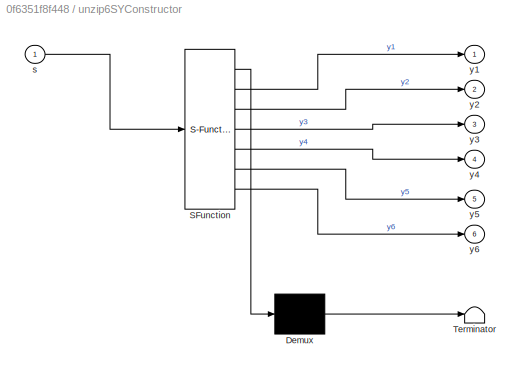
BLOCK [SubSystem] unzip6SYConstructor
  ErrorFcn = Stateflow.Translate.translate
  PermitHierarchicalResolution = ExplicitOnly
  Ports = [1, 6]
  RequestExecContextInheritance = off
  SFBlockType = MATLAB Function
  TreatAsAtomicUnit = on
BLOCK [Demux] unzip6SYConstructor/ Demux 
  Outputs = 1
  Ports = [1, 1]
BLOCK [S-Function] unzip6SYConstructor/ SFunction 
  EnableBusSupport = off
  FunctionName = sf_sfun
  PortCounts = [1 7]
  Ports = [1, 7]
  SFcnIsStateOwnerBlock = off
  SFunctionDeploymentMode = off
  Tag = Stateflow S-Function 27
BLOCK [Terminator] unzip6SYConstructor/ Terminator 
BLOCK [Inport] unzip6SYConstructor/s
BLOCK [Outport] unzip6SYConstructor/y1
BLOCK [Outport] unzip6SYConstructor/y2
  Port = 2
BLOCK [Outport] unzip6SYConstructor/y3
  Port = 3
BLOCK [Outport] unzip6SYConstructor/y4
  Port = 4
BLOCK [Outport] unzip6SYConstructor/y5
  Port = 5
BLOCK [Outport] unzip6SYConstructor/y6
  Port = 6
BLOCK [SubSystem] unzipSYConstructor
  ErrorFcn = Stateflow.Translate.translate
  PermitHierarchicalResolution = ExplicitOnly
  Ports = [1, 2]
  RequestExecContextInheritance = off
  SFBlockType = MATLAB Function
  TreatAsAtomicUnit = on
BLOCK [Demux] unzipSYConstructor/ Demux 
  Outputs = 1
  Ports = [1, 1]
BLOCK [S-Function] unzipSYConstructor/ SFunction 
  EnableBusSupport = off
  FunctionName = sf_sfun
  PortCounts = [1 3]
  Ports = [1, 3]
  SFcnIsStateOwnerBlock = off
  SFunctionDeploymentMode = off
  Tag = Stateflow S-Function 23
BLOCK [Terminator] unzipSYConstructor/ Terminator 
BLOCK [Inport] unzipSYConstructor/s
BLOCK [Outport] unzipSYConstructor/y1
BLOCK [Outport] unzipSYConstructor/y2
  Port = 2
BLOCK [SubSystem] whenSYConstructor
  ErrorFcn = Stateflow.Translate.translate
  PermitHierarchicalResolution = ExplicitOnly
  Ports = [2, 1]
  RequestExecContextInheritance = off
  SFBlockType = Chart
  TreatAsAtomicUnit = on
BLOCK [Demux] whenSYConstructor/ Demux 
  Outputs = 1
  Ports = [1, 1]
BLOCK [S-Function] whenSYConstructor/ SFunction 
  EnableBusSupport = off
  FunctionName = sf_sfun
  PortCounts = [2 2]
  Ports = [2, 2]
  SFcnIsStateOwnerBlock = off
  SFunctionDeploymentMode = off
  Tag = Stateflow S-Function 17
BLOCK [Terminator] whenSYConstructor/ Terminator 
BLOCK [Inport] whenSYConstructor/clk
BLOCK [Outport] whenSYConstructor/out
BLOCK [Inport] whenSYConstructor/s1
  Port = 2
BLOCK [SubSystem] zip3SYConstructor
  ErrorFcn = Stateflow.Translate.translate
  PermitHierarchicalResolution = ExplicitOnly
  Ports = [3, 1]
  RequestExecContextInheritance = off
  SFBlockType = MATLAB Function
  TreatAsAtomicUnit = on
BLOCK [Demux] zip3SYConstructor/ Demux 
  Outputs = 1
  Ports = [1, 1]
BLOCK [S-Function] zip3SYConstructor/ SFunction 
  EnableBusSupport = off
  FunctionName = sf_sfun
  PortCounts = [3 2]
  Ports = [3, 2]
  SFcnIsStateOwnerBlock = off
  SFunctionDeploymentMode = off
  Tag = Stateflow S-Function 19
BLOCK [Terminator] zip3SYConstructor/ Terminator 
BLOCK [Inport] zip3SYConstructor/s1
BLOCK [Inport] zip3SYConstructor/s2
  Port = 2
BLOCK [Inport] zip3SYConstructor/s3
  Port = 3
BLOCK [Outport] zip3SYConstructor/y
BLOCK [SubSystem] zip4SYConstructor
  ErrorFcn = Stateflow.Translate.translate
  PermitHierarchicalResolution = ExplicitOnly
  Ports = [4, 1]
  RequestExecContextInheritance = off
  SFBlockType = MATLAB Function
  TreatAsAtomicUnit = on
BLOCK [Demux] zip4SYConstructor/ Demux 
  Outputs = 1
  Ports = [1, 1]
BLOCK [S-Function] zip4SYConstructor/ SFunction 
  EnableBusSupport = off
  FunctionName = sf_sfun
  PortCounts = [4 2]
  Ports = [4, 2]
  SFcnIsStateOwnerBlock = off
  SFunctionDeploymentMode = off
  Tag = Stateflow S-Function 20
BLOCK [Terminator] zip4SYConstructor/ Terminator 
BLOCK [Inport] zip4SYConstructor/s1
BLOCK [Inport] zip4SYConstructor/s2
  Port = 2
BLOCK [Inport] zip4SYConstructor/s3
  Port = 3
BLOCK [Inport] zip4SYConstructor/s4
  Port = 4
BLOCK [Outport] zip4SYConstructor/y
BLOCK [SubSystem] zip5SYConstructor
  ErrorFcn = Stateflow.Translate.translate
  PermitHierarchicalResolution = ExplicitOnly
  Ports = [5, 1]
  RequestExecContextInheritance = off
  SFBlockType = MATLAB Function
  TreatAsAtomicUnit = on
BLOCK [Demux] zip5SYConstructor/ Demux 
  Outputs = 1
  Ports = [1, 1]
BLOCK [S-Function] zip5SYConstructor/ SFunction 
  EnableBusSupport = off
  FunctionName = sf_sfun
  PortCounts = [5 2]
  Ports = [5, 2]
  SFcnIsStateOwnerBlock = off
  SFunctionDeploymentMode = off
  Tag = Stateflow S-Function 21
BLOCK [Terminator] zip5SYConstructor/ Terminator 
BLOCK [Inport] zip5SYConstructor/s1
BLOCK [Inport] zip5SYConstructor/s2
  Port = 2
BLOCK [Inport] zip5SYConstructor/s3
  Port = 3
BLOCK [Inport] zip5SYConstructor/s4
  Port = 4
BLOCK [Inport] zip5SYConstructor/s5
  Port = 5
BLOCK [Outport] zip5SYConstructor/y
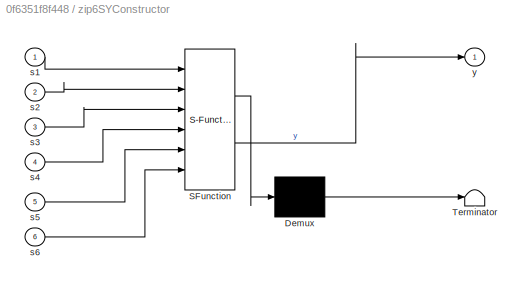
BLOCK [SubSystem] zip6SYConstructor
  ErrorFcn = Stateflow.Translate.translate
  PermitHierarchicalResolution = ExplicitOnly
  Ports = [6, 1]
  RequestExecContextInheritance = off
  SFBlockType = MATLAB Function
  TreatAsAtomicUnit = on
BLOCK [Demux] zip6SYConstructor/ Demux 
  Outputs = 1
  Ports = [1, 1]
BLOCK [S-Function] zip6SYConstructor/ SFunction 
  EnableBusSupport = off
  FunctionName = sf_sfun
  PortCounts = [6 2]
  Ports = [6, 2]
  SFcnIsStateOwnerBlock = off
  SFunctionDeploymentMode = off
  Tag = Stateflow S-Function 22
BLOCK [Terminator] zip6SYConstructor/ Terminator 
BLOCK [Inport] zip6SYConstructor/s1
BLOCK [Inport] zip6SYConstructor/s2
  Port = 2
BLOCK [Inport] zip6SYConstructor/s3
  Port = 3
BLOCK [Inport] zip6SYConstructor/s4
  Port = 4
BLOCK [Inport] zip6SYConstructor/s5
  Port = 5
BLOCK [Inport] zip6SYConstructor/s6
  Port = 6
BLOCK [Outport] zip6SYConstructor/y
BLOCK [SubSystem] zipSYConstructor
  ErrorFcn = Stateflow.Translate.translate
  PermitHierarchicalResolution = ExplicitOnly
  Ports = [2, 1]
  RequestExecContextInheritance = off
  SFBlockType = MATLAB Function
  TreatAsAtomicUnit = on
BLOCK [Demux] zipSYConstructor/ Demux 
  Outputs = 1
  Ports = [1, 1]
BLOCK [S-Function] zipSYConstructor/ SFunction 
  EnableBusSupport = off
  FunctionName = sf_sfun
  PortCounts = [2 2]
  Ports = [2, 2]
  SFcnIsStateOwnerBlock = off
  SFunctionDeploymentMode = off
  Tag = Stateflow S-Function 18
BLOCK [Terminator] zipSYConstructor/ Terminator 
BLOCK [Inport] zipSYConstructor/s1
BLOCK [Inport] zipSYConstructor/s2
  Port = 2
BLOCK [Outport] zipSYConstructor/y
BLOCK [SubSystem] zipWith3SYConstructor
  Ports = [3, 1]
  RequestExecContextInheritance = off
BLOCK [Inport] zipWith3SYConstructor/In1
BLOCK [Inport] zipWith3SYConstructor/In2
  Port = 2
BLOCK [Inport] zipWith3SYConstructor/In3
  Port = 3
BLOCK [Outport] zipWith3SYConstructor/Out1
BLOCK [FunctionCaller] zipWith3SYConstructor/zipWith3SY
  FunctionPrototype = y = zipWith3SYf(u,u1,u2)
  InputArgumentSpecifications = <Enter example>
  OutputArgumentSpecifications = <Enter example>
  Ports = [3, 1]
BLOCK [SubSystem] zipWith3SYConstructor/zipWith3SY caller
  Ports = [0, 0, 0, 1]
  RequestExecContextInheritance = off
  TreatAsAtomicUnit = on
BLOCK [Sum] zipWith3SYConstructor/zipWith3SY caller/Sum
  Inputs = |+++
  Ports = [3, 1]
BLOCK [ArgIn] zipWith3SYConstructor/zipWith3SY caller/u
  ArgumentName = u
  DisableCoverage = on
BLOCK [ArgIn] zipWith3SYConstructor/zipWith3SY caller/u1
  ArgumentName = u1
  DisableCoverage = on
  Port = 2
BLOCK [ArgIn] zipWith3SYConstructor/zipWith3SY caller/u2
  ArgumentName = u2
  DisableCoverage = on
  Port = 3
BLOCK [ArgOut] zipWith3SYConstructor/zipWith3SY caller/y
  ArgumentName = y
  DisableCoverage = on
BLOCK [TriggerPort] zipWith3SYConstructor/zipWith3SY caller/zipWith3SYf
  FunctionName = zipWith3SYf
  FunctionVisibility = scoped
  IsSimulinkFunction = on
  Ports = []
  StatesWhenEnabling = held
  TriggerType = function-call
  VariantControl = (inherit)
BLOCK [SubSystem] zipWith4SYConstructor
  Ports = [4, 1]
  RequestExecContextInheritance = off
BLOCK [Inport] zipWith4SYConstructor/In1
BLOCK [Inport] zipWith4SYConstructor/In2
  Port = 2
BLOCK [Inport] zipWith4SYConstructor/In3
  Port = 3
BLOCK [Inport] zipWith4SYConstructor/In4
  Port = 4
BLOCK [Outport] zipWith4SYConstructor/Out1
BLOCK [FunctionCaller] zipWith4SYConstructor/zipWith4SY
  FunctionPrototype = y = zipWith4SYf(u,u1,u2,u3)
  InputArgumentSpecifications = <Enter example>
  OutputArgumentSpecifications = <Enter example>
  Ports = [4, 1]
BLOCK [SubSystem] zipWith4SYConstructor/zipWith4SY caller
  Ports = [0, 0, 0, 1]
  RequestExecContextInheritance = off
  TreatAsAtomicUnit = on
BLOCK [Sum] zipWith4SYConstructor/zipWith4SY caller/Sum
  Inputs = |++++
  Ports = [4, 1]
BLOCK [ArgIn] zipWith4SYConstructor/zipWith4SY caller/u
  ArgumentName = u
  DisableCoverage = on
BLOCK [ArgIn] zipWith4SYConstructor/zipWith4SY caller/u1
  ArgumentName = u1
  DisableCoverage = on
  Port = 2
BLOCK [ArgIn] zipWith4SYConstructor/zipWith4SY caller/u2
  ArgumentName = u2
  DisableCoverage = on
  Port = 3
BLOCK [ArgIn] zipWith4SYConstructor/zipWith4SY caller/u3
  ArgumentName = u3
  DisableCoverage = on
  Port = 4
BLOCK [ArgOut] zipWith4SYConstructor/zipWith4SY caller/y
  ArgumentName = y
  DisableCoverage = on
BLOCK [TriggerPort] zipWith4SYConstructor/zipWith4SY caller/zipWith4SYf
  FunctionName = zipWith4SYf
  FunctionVisibility = scoped
  IsSimulinkFunction = on
  Ports = []
  StatesWhenEnabling = held
  TriggerType = function-call
  VariantControl = (inherit)
BLOCK [SubSystem] zipWithSYConstructor
  Ports = [2, 1]
  RequestExecContextInheritance = off
BLOCK [Inport] zipWithSYConstructor/In1
BLOCK [Inport] zipWithSYConstructor/In2
  Port = 2
BLOCK [Outport] zipWithSYConstructor/Out1
BLOCK [FunctionCaller] zipWithSYConstructor/zipWithSY
  FunctionPrototype = y = zipWithSYf(u,u1)
  InputArgumentSpecifications = <Enter example>
  OutputArgumentSpecifications = <Enter example>
  Ports = [2, 1]
BLOCK [SubSystem] zipWithSYConstructor/zipWithSY caller
  Ports = [0, 0, 0, 1]
  RequestExecContextInheritance = off
  TreatAsAtomicUnit = on
BLOCK [Sum] zipWithSYConstructor/zipWithSY caller/Sum
  Inputs = |++
  Ports = [2, 1]
BLOCK [ArgIn] zipWithSYConstructor/zipWithSY caller/u
  ArgumentName = u
  DisableCoverage = on
BLOCK [ArgIn] zipWithSYConstructor/zipWithSY caller/u1
  ArgumentName = u1
  DisableCoverage = on
  Port = 2
BLOCK [ArgOut] zipWithSYConstructor/zipWithSY caller/y
  ArgumentName = y
  DisableCoverage = on
BLOCK [TriggerPort] zipWithSYConstructor/zipWithSY caller/zipWithSYf
  FunctionName = zipWithSYf
  FunctionVisibility = scoped
  IsSimulinkFunction = on
  Ports = []
  StatesWhenEnabling = held
  TriggerType = function-call
  VariantControl = (inherit)
BLOCK [SubSystem] zipWithxSY
  Description = xSig must be defined before using this block from Matlab and indicates the number of signals contained in the input signals vector
  Ports = [1, 1]
  RequestExecContextInheritance = off
BLOCK [Demux] zipWithxSY/Demux
  Outputs = 3
  Ports = [1, 3]
BLOCK [Inport] zipWithxSY/In1
BLOCK [Outport] zipWithxSY/Out3
BLOCK [Sum] zipWithxSY/Sum
  Inputs = +++
  Ports = [3, 1]
LINE filterSYConstructor/filterSY:1 -> filterSYConstructor/out:1
LINE filterSYConstructor/filterf/Constant1:1 -> filterSYConstructor/filterf/Sum:2
LINE filterSYConstructor/filterf/Sum:1 -> filterSYConstructor/filterf/y:1
LINE filterSYConstructor/filterf/u:1 -> filterSYConstructor/filterf/Sum:1
LINE filterSYConstructor/s1:1 -> filterSYConstructor/filterSY:1
LINE mapSYConstructor/In1:1 -> mapSYConstructor/mapSY:1
LINE mapSYConstructor/mapSY Function/Constant:1 -> mapSYConstructor/mapSY Function/Sum:2
LINE mapSYConstructor/mapSY Function/Sum:1 -> mapSYConstructor/mapSY Function/y:1
LINE mapSYConstructor/mapSY Function/u:1 -> mapSYConstructor/mapSY Function/Sum:1
LINE mapSYConstructor/mapSY:1 -> mapSYConstructor/Out1:1
LINE mapxSY/Constant:1 -> mapxSY/Sum:2
LINE mapxSY/In1:1 -> mapxSY/Sum:1
LINE mapxSY/Sum:1 -> mapxSY/Out1:1
LINE mealy2SYConstructor/inState:1 -> mealy2SYConstructor/mealy2SY:1
LINE mealy2SYConstructor/mealy2SY:1 -> mealy2SYConstructor/out:1
LINE mealy2SYConstructor/mealy2SYNextStatef/Sum:1 -> mealy2SYConstructor/mealy2SYNextStatef/y:1
LINE mealy2SYConstructor/mealy2SYNextStatef/u1:1 -> mealy2SYConstructor/mealy2SYNextStatef/Sum:2
LINE mealy2SYConstructor/mealy2SYNextStatef/u2:1 -> mealy2SYConstructor/mealy2SYNextStatef/Sum:3
LINE mealy2SYConstructor/mealy2SYNextStatef/u:1 -> mealy2SYConstructor/mealy2SYNextStatef/Sum:1
LINE mealy2SYConstructor/mealy2SYOutf/Sum:1 -> mealy2SYConstructor/mealy2SYOutf/y:1
LINE mealy2SYConstructor/mealy2SYOutf/u1:1 -> mealy2SYConstructor/mealy2SYOutf/Sum:2
LINE mealy2SYConstructor/mealy2SYOutf/u2:1 -> mealy2SYConstructor/mealy2SYOutf/Sum:3
LINE mealy2SYConstructor/mealy2SYOutf/u:1 -> mealy2SYConstructor/mealy2SYOutf/Sum:1
LINE mealy2SYConstructor/s1:1 -> mealy2SYConstructor/mealy2SY:2
LINE mealy2SYConstructor/s2:1 -> mealy2SYConstructor/mealy2SY:3
LINE mealy3SYConstructor/inState:1 -> mealy3SYConstructor/mealy3SY:1
LINE mealy3SYConstructor/mealy3SY:1 -> mealy3SYConstructor/out:1
LINE mealy3SYConstructor/mealy3SYNextStatef/Sum:1 -> mealy3SYConstructor/mealy3SYNextStatef/y:1
LINE mealy3SYConstructor/mealy3SYNextStatef/u1:1 -> mealy3SYConstructor/mealy3SYNextStatef/Sum:2
LINE mealy3SYConstructor/mealy3SYNextStatef/u2:1 -> mealy3SYConstructor/mealy3SYNextStatef/Sum:3
LINE mealy3SYConstructor/mealy3SYNextStatef/u3:1 -> mealy3SYConstructor/mealy3SYNextStatef/Sum:4
LINE mealy3SYConstructor/mealy3SYNextStatef/u:1 -> mealy3SYConstructor/mealy3SYNextStatef/Sum:1
LINE mealy3SYConstructor/mealy3SYOutf/Sum:1 -> mealy3SYConstructor/mealy3SYOutf/y:1
LINE mealy3SYConstructor/mealy3SYOutf/u1:1 -> mealy3SYConstructor/mealy3SYOutf/Sum:2
LINE mealy3SYConstructor/mealy3SYOutf/u2:1 -> mealy3SYConstructor/mealy3SYOutf/Sum:3
LINE mealy3SYConstructor/mealy3SYOutf/u3:1 -> mealy3SYConstructor/mealy3SYOutf/Sum:4
LINE mealy3SYConstructor/mealy3SYOutf/u:1 -> mealy3SYConstructor/mealy3SYOutf/Sum:1
LINE mealy3SYConstructor/s1:1 -> mealy3SYConstructor/mealy3SY:2
LINE mealy3SYConstructor/s2:1 -> mealy3SYConstructor/mealy3SY:3
LINE mealy3SYConstructor/s3:1 -> mealy3SYConstructor/mealy3SY:4
LINE mealySYConstructor/inState:1 -> mealySYConstructor/mealySY:2
LINE mealySYConstructor/mealySY:1 -> mealySYConstructor/out:1
LINE mealySYConstructor/mealySYNextStatef/Sum:1 -> mealySYConstructor/mealySYNextStatef/y:1
LINE mealySYConstructor/mealySYNextStatef/u1:1 -> mealySYConstructor/mealySYNextStatef/Sum:2
LINE mealySYConstructor/mealySYNextStatef/u:1 -> mealySYConstructor/mealySYNextStatef/Sum:1
LINE mealySYConstructor/mealySYOutf/Product:1 -> mealySYConstructor/mealySYOutf/y:1
LINE mealySYConstructor/mealySYOutf/u1:1 -> mealySYConstructor/mealySYOutf/Product:2
LINE mealySYConstructor/mealySYOutf/u:1 -> mealySYConstructor/mealySYOutf/Product:1
LINE mealySYConstructor/s1:1 -> mealySYConstructor/mealySY:1
LINE moore2SYConstructor/inState:1 -> moore2SYConstructor/moore2SY:1
LINE moore2SYConstructor/moore2SY:1 -> moore2SYConstructor/out:1
LINE moore2SYConstructor/moore2SYNextStatef/Sum:1 -> moore2SYConstructor/moore2SYNextStatef/y:1
LINE moore2SYConstructor/moore2SYNextStatef/u1:1 -> moore2SYConstructor/moore2SYNextStatef/Sum:2
LINE moore2SYConstructor/moore2SYNextStatef/u2:1 -> moore2SYConstructor/moore2SYNextStatef/Sum:3
LINE moore2SYConstructor/moore2SYNextStatef/u:1 -> moore2SYConstructor/moore2SYNextStatef/Sum:1
LINE moore2SYConstructor/moore2SYOutf/Gain:1 -> moore2SYConstructor/moore2SYOutf/y:1
LINE moore2SYConstructor/moore2SYOutf/u:1 -> moore2SYConstructor/moore2SYOutf/Gain:1
LINE moore2SYConstructor/s1:1 -> moore2SYConstructor/moore2SY:2
LINE moore2SYConstructor/s2:1 -> moore2SYConstructor/moore2SY:3
LINE moore3SYConstructor/inState:1 -> moore3SYConstructor/moore3SY:1
LINE moore3SYConstructor/moore3SY:1 -> moore3SYConstructor/out:1
LINE moore3SYConstructor/moore3SYNextStatef/Sum:1 -> moore3SYConstructor/moore3SYNextStatef/y:1
LINE moore3SYConstructor/moore3SYNextStatef/u1:1 -> moore3SYConstructor/moore3SYNextStatef/Sum:2
LINE moore3SYConstructor/moore3SYNextStatef/u2:1 -> moore3SYConstructor/moore3SYNextStatef/Sum:3
LINE moore3SYConstructor/moore3SYNextStatef/u3:1 -> moore3SYConstructor/moore3SYNextStatef/Sum:4
LINE moore3SYConstructor/moore3SYNextStatef/u:1 -> moore3SYConstructor/moore3SYNextStatef/Sum:1
LINE moore3SYConstructor/moore3SYOutf/Gain:1 -> moore3SYConstructor/moore3SYOutf/y:1
LINE moore3SYConstructor/moore3SYOutf/u:1 -> moore3SYConstructor/moore3SYOutf/Gain:1
LINE moore3SYConstructor/s1:1 -> moore3SYConstructor/moore3SY:2
LINE moore3SYConstructor/s2:1 -> moore3SYConstructor/moore3SY:3
LINE moore3SYConstructor/s3:1 -> moore3SYConstructor/moore3SY:4
LINE mooreSYConstructor/inState:1 -> mooreSYConstructor/mooreSY:2
LINE mooreSYConstructor/mooreSY:1 -> mooreSYConstructor/out:1
LINE mooreSYConstructor/mooreSYNextStatef/Sum:1 -> mooreSYConstructor/mooreSYNextStatef/y:1
LINE mooreSYConstructor/mooreSYNextStatef/u1:1 -> mooreSYConstructor/mooreSYNextStatef/Sum:2
LINE mooreSYConstructor/mooreSYNextStatef/u:1 -> mooreSYConstructor/mooreSYNextStatef/Sum:1
LINE mooreSYConstructor/mooreSYOutf/Gain:1 -> mooreSYConstructor/mooreSYOutf/y:1
LINE mooreSYConstructor/mooreSYOutf/u:1 -> mooreSYConstructor/mooreSYOutf/Gain:1
LINE mooreSYConstructor/s1:1 -> mooreSYConstructor/mooreSY:1
LINE scanl2SYConstructor/inState:1 -> scanl2SYConstructor/scanl2SY:1
LINE scanl2SYConstructor/s1:1 -> scanl2SYConstructor/scanl2SY:2
LINE scanl2SYConstructor/s2:1 -> scanl2SYConstructor/scanl2SY:3
LINE scanl2SYConstructor/scanl2SY:1 -> scanl2SYConstructor/out:1
LINE scanl2SYConstructor/scanl2SYOutf/Sum:1 -> scanl2SYConstructor/scanl2SYOutf/y:1
LINE scanl2SYConstructor/scanl2SYOutf/u1:1 -> scanl2SYConstructor/scanl2SYOutf/Sum:2
LINE scanl2SYConstructor/scanl2SYOutf/u2:1 -> scanl2SYConstructor/scanl2SYOutf/Sum:3
LINE scanl2SYConstructor/scanl2SYOutf/u:1 -> scanl2SYConstructor/scanl2SYOutf/Sum:1
LINE scanl3SYConstructor/inState:1 -> scanl3SYConstructor/scanl3SY:1
LINE scanl3SYConstructor/s1:1 -> scanl3SYConstructor/scanl3SY:2
LINE scanl3SYConstructor/s2:1 -> scanl3SYConstructor/scanl3SY:3
LINE scanl3SYConstructor/s3:1 -> scanl3SYConstructor/scanl3SY:4
LINE scanl3SYConstructor/scanl3SY:1 -> scanl3SYConstructor/out:1
LINE scanl3SYConstructor/scanl3SYOutf/Sum:1 -> scanl3SYConstructor/scanl3SYOutf/y:1
LINE scanl3SYConstructor/scanl3SYOutf/u1:1 -> scanl3SYConstructor/scanl3SYOutf/Sum:2
LINE scanl3SYConstructor/scanl3SYOutf/u2:1 -> scanl3SYConstructor/scanl3SYOutf/Sum:3
LINE scanl3SYConstructor/scanl3SYOutf/u3:1 -> scanl3SYConstructor/scanl3SYOutf/Sum:4
LINE scanl3SYConstructor/scanl3SYOutf/u:1 -> scanl3SYConstructor/scanl3SYOutf/Sum:1
LINE scanlSYConstructor/inState:1 -> scanlSYConstructor/scanlSY:2
LINE scanlSYConstructor/s1:1 -> scanlSYConstructor/scanlSY:1
LINE scanlSYConstructor/scanlSY:1 -> scanlSYConstructor/out:1
LINE scanlSYConstructor/scanlSYOutf/Sum:1 -> scanlSYConstructor/scanlSYOutf/y:1
LINE scanlSYConstructor/scanlSYOutf/u1:1 -> scanlSYConstructor/scanlSYOutf/Sum:2
LINE scanlSYConstructor/scanlSYOutf/u:1 -> scanlSYConstructor/scanlSYOutf/Sum:1
LINE scanld2SYConstructor/inState:1 -> scanld2SYConstructor/scanld2SY:1
LINE scanld2SYConstructor/s1:1 -> scanld2SYConstructor/scanld2SY:2
LINE scanld2SYConstructor/s2:1 -> scanld2SYConstructor/scanld2SY:3
LINE scanld2SYConstructor/scanld2SY:1 -> scanld2SYConstructor/out:1
LINE scanld2SYConstructor/scanld2SYNextf/Sum:1 -> scanld2SYConstructor/scanld2SYNextf/y:1
LINE scanld2SYConstructor/scanld2SYNextf/u1:1 -> scanld2SYConstructor/scanld2SYNextf/Sum:2
LINE scanld2SYConstructor/scanld2SYNextf/u2:1 -> scanld2SYConstructor/scanld2SYNextf/Sum:3
LINE scanld2SYConstructor/scanld2SYNextf/u:1 -> scanld2SYConstructor/scanld2SYNextf/Sum:1
LINE scanld3SYConstructor/inState:1 -> scanld3SYConstructor/scanld3SY:1
LINE scanld3SYConstructor/s1:1 -> scanld3SYConstructor/scanld3SY:2
LINE scanld3SYConstructor/s2:1 -> scanld3SYConstructor/scanld3SY:3
LINE scanld3SYConstructor/s3:1 -> scanld3SYConstructor/scanld3SY:4
LINE scanld3SYConstructor/scanld3SY:1 -> scanld3SYConstructor/out:1
LINE scanld3SYConstructor/scanld3SYNextf/Sum:1 -> scanld3SYConstructor/scanld3SYNextf/y:1
LINE scanld3SYConstructor/scanld3SYNextf/u1:1 -> scanld3SYConstructor/scanld3SYNextf/Sum:2
LINE scanld3SYConstructor/scanld3SYNextf/u2:1 -> scanld3SYConstructor/scanld3SYNextf/Sum:3
LINE scanld3SYConstructor/scanld3SYNextf/u3:1 -> scanld3SYConstructor/scanld3SYNextf/Sum:4
LINE scanld3SYConstructor/scanld3SYNextf/u:1 -> scanld3SYConstructor/scanld3SYNextf/Sum:1
LINE scanldSYConstructor/inState:1 -> scanldSYConstructor/scanldSY:2
LINE scanldSYConstructor/s1:1 -> scanldSYConstructor/scanldSY:1
LINE scanldSYConstructor/scanldSY:1 -> scanldSYConstructor/out:1
LINE scanldSYConstructor/scanldSYNextf/Sum:1 -> scanldSYConstructor/scanldSYNextf/y:1
LINE scanldSYConstructor/scanldSYNextf/u1:1 -> scanldSYConstructor/scanldSYNextf/Sum:2
LINE scanldSYConstructor/scanldSYNextf/u:1 -> scanldSYConstructor/scanldSYNextf/Sum:1
LINE sourceSYConstructor/inState:1 -> sourceSYConstructor/sourceSY:1
LINE sourceSYConstructor/recursivef/Constant:1 -> sourceSYConstructor/recursivef/Sum:2
LINE sourceSYConstructor/recursivef/Sum:1 -> sourceSYConstructor/recursivef/y:1
LINE sourceSYConstructor/recursivef/u:1 -> sourceSYConstructor/recursivef/Sum:1
NET sourceSYConstructor/sourceSY:1 -> sourceSYConstructor/To Workspace1:1, sourceSYConstructor/out:1
LINE zipWith3SYConstructor/In1:1 -> zipWith3SYConstructor/zipWith3SY:1
LINE zipWith3SYConstructor/In2:1 -> zipWith3SYConstructor/zipWith3SY:2
LINE zipWith3SYConstructor/In3:1 -> zipWith3SYConstructor/zipWith3SY:3
LINE zipWith3SYConstructor/zipWith3SY caller/Sum:1 -> zipWith3SYConstructor/zipWith3SY caller/y:1
LINE zipWith3SYConstructor/zipWith3SY caller/u1:1 -> zipWith3SYConstructor/zipWith3SY caller/Sum:2
LINE zipWith3SYConstructor/zipWith3SY caller/u2:1 -> zipWith3SYConstructor/zipWith3SY caller/Sum:3
LINE zipWith3SYConstructor/zipWith3SY caller/u:1 -> zipWith3SYConstructor/zipWith3SY caller/Sum:1
LINE zipWith3SYConstructor/zipWith3SY:1 -> zipWith3SYConstructor/Out1:1
LINE zipWith4SYConstructor/In1:1 -> zipWith4SYConstructor/zipWith4SY:1
LINE zipWith4SYConstructor/In2:1 -> zipWith4SYConstructor/zipWith4SY:2
LINE zipWith4SYConstructor/In3:1 -> zipWith4SYConstructor/zipWith4SY:3
LINE zipWith4SYConstructor/In4:1 -> zipWith4SYConstructor/zipWith4SY:4
LINE zipWith4SYConstructor/zipWith4SY caller/Sum:1 -> zipWith4SYConstructor/zipWith4SY caller/y:1
LINE zipWith4SYConstructor/zipWith4SY caller/u1:1 -> zipWith4SYConstructor/zipWith4SY caller/Sum:2
LINE zipWith4SYConstructor/zipWith4SY caller/u2:1 -> zipWith4SYConstructor/zipWith4SY caller/Sum:3
LINE zipWith4SYConstructor/zipWith4SY caller/u3:1 -> zipWith4SYConstructor/zipWith4SY caller/Sum:4
LINE zipWith4SYConstructor/zipWith4SY caller/u:1 -> zipWith4SYConstructor/zipWith4SY caller/Sum:1
LINE zipWith4SYConstructor/zipWith4SY:1 -> zipWith4SYConstructor/Out1:1
LINE zipWithSYConstructor/In1:1 -> zipWithSYConstructor/zipWithSY:1
LINE zipWithSYConstructor/In2:1 -> zipWithSYConstructor/zipWithSY:2
LINE zipWithSYConstructor/zipWithSY caller/Sum:1 -> zipWithSYConstructor/zipWithSY caller/y:1
LINE zipWithSYConstructor/zipWithSY caller/u1:1 -> zipWithSYConstructor/zipWithSY caller/Sum:2
LINE zipWithSYConstructor/zipWithSY caller/u:1 -> zipWithSYConstructor/zipWithSY caller/Sum:1
LINE zipWithSYConstructor/zipWithSY:1 -> zipWithSYConstructor/Out1:1
LINE zipWithxSY/Demux:1 -> zipWithxSY/Sum:1
LINE zipWithxSY/Demux:2 -> zipWithxSY/Sum:2
LINE zipWithxSY/Demux:3 -> zipWithxSY/Sum:3
LINE zipWithxSY/In1:1 -> zipWithxSY/Demux:1
LINE zipWithxSY/Sum:1 -> zipWithxSY/Out3:1
note: NET lines group one-source signal fan-out (src -> all destinations, sorted); 1:1 wires keep LINE
CHART moore3SYConstructor/moore3SY states=1 transitions=1
  STATE_LABEL 'next\nentry:\nlocState=inState;\nout=moore3SYOutf(locState);\nlocState=moore3SYNextStatef(locState,s1,s2,s3);\nduring:\nout=moore3SYOutf(locState);\nlocState=moore3SYNextStatef(locState,s1,s2,s3);'
CHART mealy3SYConstructor/mealy3SY states=1 transitions=1
  STATE_LABEL 'next\nentry:\nlocState=inState;\nout=mealy3SYOutf(locState,s1,s2,s3);\nlocState=mealy3SYNextStatef(locState,s1,s2,s3);\nduring:\nout=mealy3SYOutf(locState,s1,s2,s3);\nlocState=mealy3SYNextStatef(locState,s1,s2,s3);'
CHART sourceSYConstructor/sourceSY states=1 transitions=1
  STATE_LABEL 'next\nentry:\ncounter=0;\nlocState=inState;\nout=locState;\nlocState=recursivef(locState);\ncounter=counter+1;\nduring:\nout=locState;\nlocState=recursivef(locState);\ncounter=counter+1;'
CHART filterSYConstructor/filterSY states=1 transitions=1
  STATE_LABEL 'Filter\nentry:\nout=filterf(s1)\nif out <= 0\n    out = NaN;\nelse\n    out=s1;\nend\nduring:\nout=filterf(s1)\nif out <= 0\n    out = NaN;\nelse\n    out=s1;\nend'
CHART scanldSYConstructor/scanldSY states=1 transitions=1
  STATE_LABEL 'next\nentry:\nlocState=inState;\nout=locState;\nlocState=scanldSYNextf(out,s1);\nduring:\nout=locState;\nlocState=scanldSYNextf(out,s1);\n'
CHART fillSYConstructor states=1 transitions=1
  STATE_LABEL 'fill\nif s1==-1\n    out=fillVal;\nelse\n    out=s1;\nend'
CHART holdSYConstructor states=1 transitions=1
  STATE_LABEL 'hold\nentry:\nlocalVal=fillVal;\nif s1==-1\n    out=localVal;\nelse\n    out=s1;\n    localVal=s1;\nend\nduring:\nif s1==-1\n    out=localVal;\nelse\n    out=s1;\n    localVal=s1;\nend'
CHART whenSYConstructor states=1 transitions=1
  STATE_LABEL 'testwhenSY\nif clk==-1\n    out=NaN;\nelse\n    out=s1;\nend'
CHART zipSYConstructor states=1 transitions=1
  STATE_LABEL 'eML_blk_kernel()'
  STATE_LABEL 'SCRIPT:\nfunction y = fcn(s1,s2)\ncounterMat=1;\nA = zeros(counterMat,2);\nA(counterMat,1) = s1;\nA(counterMat,2) = s2;\ncounterMat=counterMat+1;\ny=A;'
CHART zip3SYConstructor states=1 transitions=1
  STATE_LABEL 'eML_blk_kernel()'
  STATE_LABEL 'SCRIPT:\nfunction y = fcn(s1,s2,s3)\ncounterMat=1;\nA = zeros(counterMat,3);\nA(counterMat,1) = s1;\nA(counterMat,2) = s2;\nA(counterMat,3) = s3;\ncounterMat=counterMat+1;\ny=A;'
CHART zip4SYConstructor states=1 transitions=1
  STATE_LABEL 'eML_blk_kernel()'
  STATE_LABEL 'SCRIPT:\nfunction y = fcn(s1,s2,s3,s4)\ncounterMat=1;\nA = zeros(counterMat,4);\nA(counterMat,1) = s1;\nA(counterMat,2) = s2;\nA(counterMat,3) = s3;\nA(counterMat,4) = s4;\ncounterMat=counterMat+1;\ny=A;'
CHART zip5SYConstructor states=1 transitions=1
  STATE_LABEL 'eML_blk_kernel()'
  STATE_LABEL 'SCRIPT:\nfunction y = fcn(s1,s2,s3,s4,s5)\ncounterMat=1;\nA = zeros(counterMat,5);\nA(counterMat,1) = s1;\nA(counterMat,2) = s2;\nA(counterMat,3) = s3;\nA(counterMat,4) = s4;\nA(counterMat,5) = s5;\ncounterMat=counterMat+1;\ny=A;'
CHART zip6SYConstructor states=1 transitions=1
  STATE_LABEL 'eML_blk_kernel()'
  STATE_LABEL 'SCRIPT:\nfunction y = fcn(s1,s2,s3,s4,s5,s6)\ncounterMat=1;\nA = zeros(counterMat,6);\nA(counterMat,1) = s1;\nA(counterMat,2) = s2;\nA(counterMat,3) = s3;\nA(counterMat,4) = s4;\nA(counterMat,5) = s5;\nA(counterMat,6) = s6;\ncounterMat=counterMat+1;\ny=A;'
CHART unzipSYConstructor states=1 transitions=1
  STATE_LABEL 'eML_blk_kernel()'
  STATE_LABEL 'SCRIPT:\nfunction [y1,y2] = fcn(s)\ncounterMat=1;\ny1=s(counterMat,1);\ny2=s(counterMat,2);\ncounterMat=counterMat+1;\n'
CHART mooreSYConstructor/mooreSY states=1 transitions=1
  STATE_LABEL 'next\nentry:\nlocState=inState;\nout=mooreSYOutf(locState);\nlocState=mooreSYNextStatef(locState,s1);\nduring:\nout=mooreSYOutf(locState);\nlocState=mooreSYNextStatef(locState,s1);'
CHART unzip3SYConstructor states=1 transitions=1
  STATE_LABEL 'eML_blk_kernel()'
  STATE_LABEL 'SCRIPT:\nfunction [y1,y2,y3] = fcn(s)\ncounterMat=1;\ny1=s(counterMat,1);\ny2=s(counterMat,2);\ny3=s(counterMat,3);\ncounterMat=counterMat+1;\n'
CHART unzip4SYConstructor states=1 transitions=1
  STATE_LABEL 'eML_blk_kernel()'
  STATE_LABEL 'SCRIPT:\nfunction [y1,y2,y3,y4] = fcn(s)\ncounterMat=1;\ny1=s(counterMat,1);\ny2=s(counterMat,2);\ny3=s(counterMat,3);\ny4=s(counterMat,4);\ncounterMat=counterMat+1;\n'
CHART unzip5SYConstructor states=1 transitions=1
  STATE_LABEL 'eML_blk_kernel()'
  STATE_LABEL 'SCRIPT:\nfunction [y1,y2,y3,y4,y5] = fcn(s)\ncounterMat=1;\ny1=s(counterMat,1);\ny2=s(counterMat,2);\ny3=s(counterMat,3);\ny4=s(counterMat,4);\ny5=s(counterMat,5);\ncounterMat=counterMat+1;\n'
CHART unzip6SYConstructor states=1 transitions=1
  STATE_LABEL 'eML_blk_kernel()'
  STATE_LABEL 'SCRIPT:\nfunction [y1,y2,y3,y4,y5,y6] = fcn(s)\ncounterMat=1;\ny1=s(counterMat,1);\ny2=s(counterMat,2);\ny3=s(counterMat,3);\ny4=s(counterMat,4);\ny5=s(counterMat,5);\ny6=s(counterMat,6);\ncounterMat=counterMat+1;\n'
CHART fstSY states=1 transitions=1
  STATE_LABEL 'eML_blk_kernel()'
  STATE_LABEL 'SCRIPT:\nfunction y= fcn(s)\ncounterMat=1;\ny=s(counterMat,1);\ncounterMat=counterMat+1;\n'
CHART sndSY states=1 transitions=1
  STATE_LABEL 'eML_blk_kernel()'
  STATE_LABEL 'SCRIPT:\nfunction y= fcn(s)\ncounterMat=1;\ny=s(counterMat,2);\ncounterMat=counterMat+1;\n'
CHART scanlSYConstructor/scanlSY states=1 transitions=1
  STATE_LABEL 'next\nentry:\nlocState=inState;\nout=scanlSYOutf(locState,s1);\nlocState=out;\nduring:\nout=scanlSYOutf(locState,s1);\nlocState=out;\n'
CHART mealySYConstructor/mealySY states=1 transitions=1
  STATE_LABEL 'next\nentry:\nlocState=inState;\nout=mealySYOutf(locState,s1);\nlocState=mealySYNextStatef(locState,s1);\nduring:\nout=mealySYOutf(locState,s1);\nlocState=mealySYNextStatef(locState,s1);\n'
CHART scanl3SYConstructor/scanl3SY states=1 transitions=1
  STATE_LABEL 'next\nentry:\nlocState=inState;\nout=scanl3SYOutf(locState,s1,s2,s3);\nlocState=out;\nduring:\nout=scanl3SYOutf(locState,s1,s2,s3);\nlocState=out;\n'
CHART scanl2SYConstructor/scanl2SY states=1 transitions=1
  STATE_LABEL 'next\nentry:\nlocState=inState;\nout=scanl2SYOutf(locState,s1,s2);\nlocState=out;\nduring:\nout=scanl2SYOutf(locState,s1,s2);\nlocState=out;\n'
CHART scanld2SYConstructor/scanld2SY states=1 transitions=1
  STATE_LABEL 'next\nentry:\nlocState=inState;\nout=locState;\nlocState=scanld2SYNextf(out,s1,s2);\nduring:\nout=locState;\nlocState=scanld2SYNextf(out,s1,s2);\n'
CHART scanld3SYConstructor/scanld3SY states=1 transitions=1
  STATE_LABEL 'next\nentry:\nlocState=inState;\nout=locState;\nlocState=scanld3SYNextf(out,s1,s2,s3);\nduring:\nout=locState;\nlocState=scanld3SYNextf(out,s1,s2,s3);\n'
CHART moore2SYConstructor/moore2SY states=1 transitions=1
  STATE_LABEL 'next\nentry:\nlocState=inState;\nout=moore2SYOutf(locState);\nlocState=moore2SYNextStatef(locState,s1,s2);\nduring:\nout=moore2SYOutf(locState);\nlocState=moore2SYNextStatef(locState,s1,s2);'
CHART mealy2SYConstructor/mealy2SY states=1 transitions=1
  STATE_LABEL 'next\nentry:\nlocState=inState;\nout=mealy2SYOutf(locState,s1,s2);\nlocState=mealy2SYNextStatef(locState,s1,s2);\nduring:\nout=mealy2SYOutf(locState,s1,s2);\nlocState=mealy2SYNextStatef(locState,s1,s2);'
CHART  states=0 transitions=0
CHART  states=0 transitions=0
CHART  states=0 transitions=0
CHART  states=0 transitions=0
CHART  states=0 transitions=0
CHART  states=0 transitions=0
CHART  states=0 transitions=0
CHART  states=0 transitions=0
CHART  states=0 transitions=0
CHART  states=0 transitions=0
CHART  states=0 transitions=0
CHART  states=0 transitions=0
CHART  states=0 transitions=0
CHART  states=0 transitions=0
CHART  states=0 transitions=0
CHART  states=0 transitions=0
CHART  states=0 transitions=0
CHART  states=0 transitions=0
CHART  states=0 transitions=0
CHART  states=0 transitions=0
CHART  states=0 transitions=0
CHART  states=0 transitions=0
CHART  states=0 transitions=0
CHART  states=0 transitions=0
CHART  states=0 transitions=0
CHART  states=0 transitions=0
CHART  states=0 transitions=0
CHART  states=0 transitions=0
CHART  states=0 transitions=0
